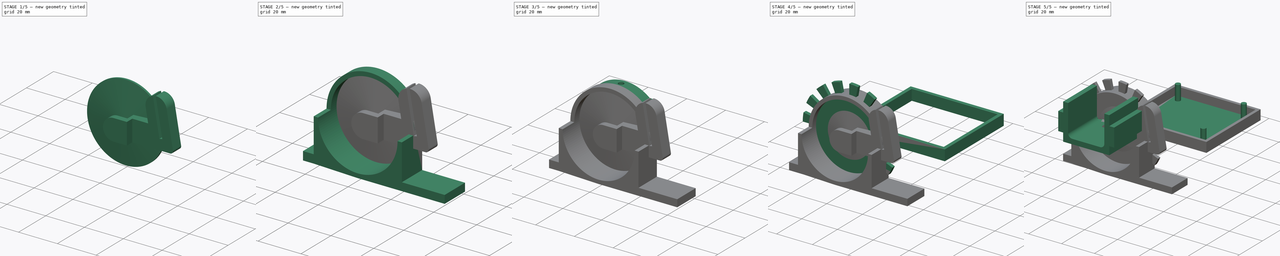
[diagram: build sequence overview — one tinted view per stage of 5, left to right]
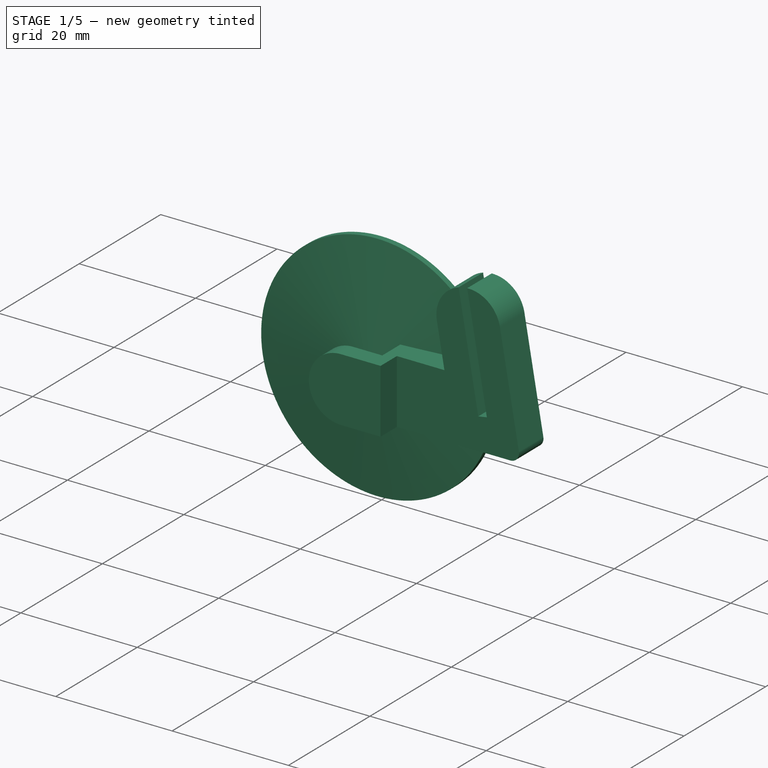
[diagram: stage 1 of 5 — iso view after this stage's code; geometry added in this stage tinted green]
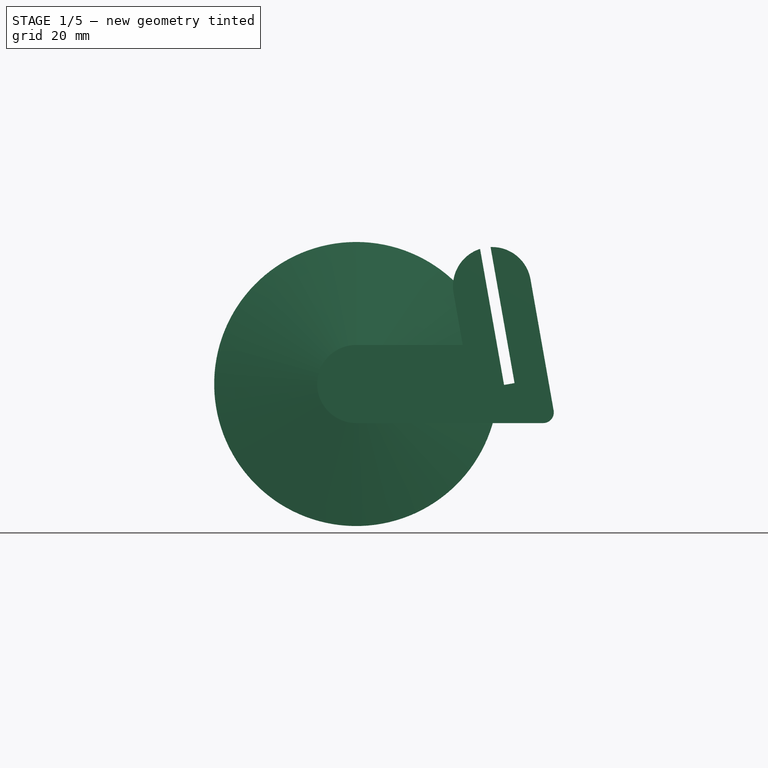
[diagram: stage 1 of 5 — front view after this stage's code; geometry added in this stage tinted green]
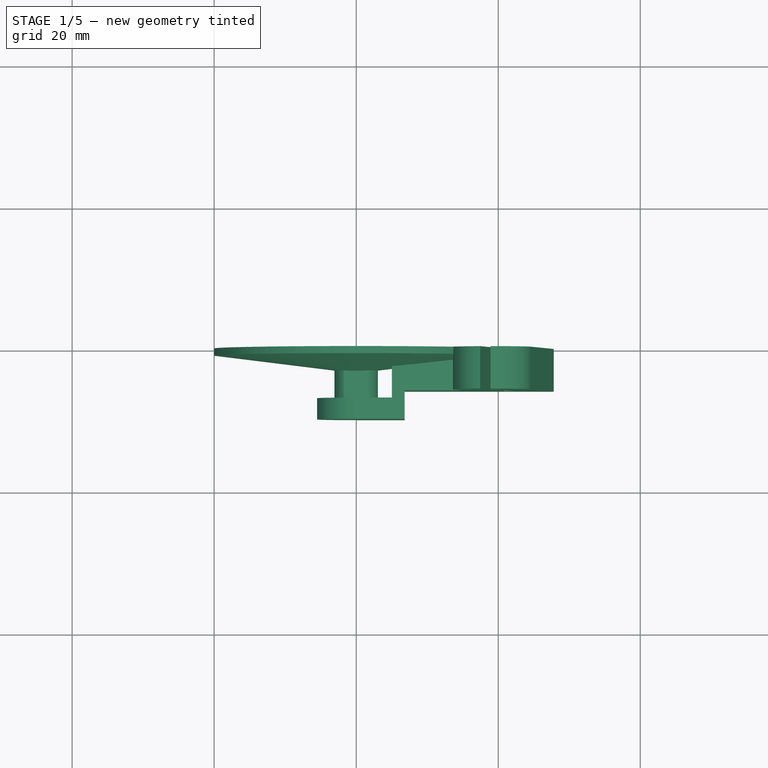
[diagram: stage 1 of 5 — top view after this stage's code; geometry added in this stage tinted green]
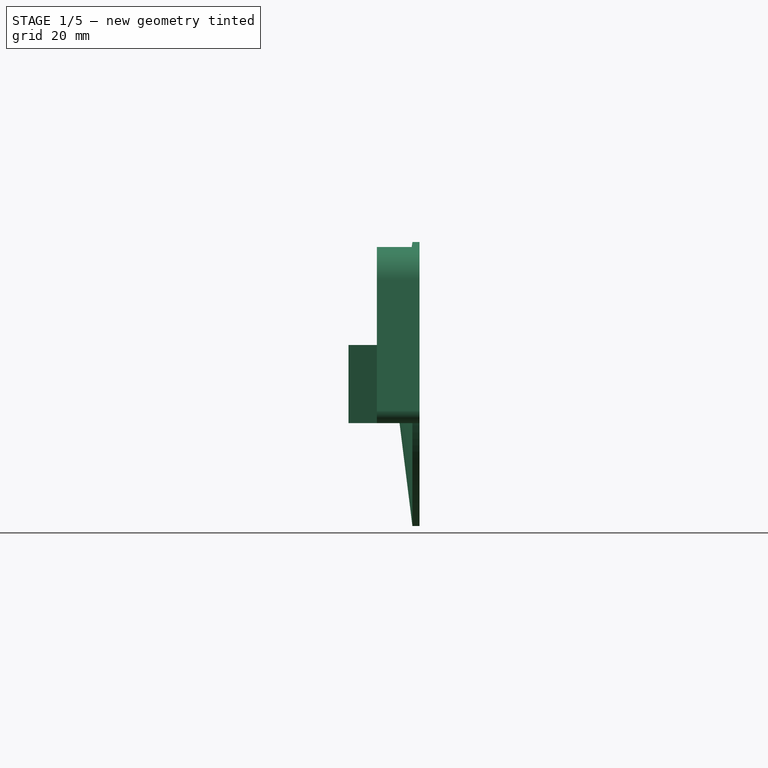
[diagram: stage 1 of 5 — right view after this stage's code; geometry added in this stage tinted green]
FCSTD DOCUMENT  (FreeCAD 1.0R39109 (Git))
Label: GreartisanGB37RGHolder
License: All rights reserved
LicenseURL: http://en.wikipedia.org/wiki/All_rights_reserved
objects: Sketcher::SketchObject×29, PartDesign::Pad×15, PartDesign::Pocket×11, PartDesign::Body×7, App::VarSet×1, PartDesign::Groove×1, PartDesign::PolarPattern×1, PartDesign::Revolution×1
note: 151 computed .brp shape members not serialized (recipe doc carries the construction recipe); baked Part::Feature solids carry a one-line shape summary decoded from their .brp

FEATURE [PartDesign::Body] Body001  label="Connector"
  AllowCompound = false
  Group = -> [Sketch002,Pad002,Sketch003,Groove,Sketch004,Pocket,Sketch006,Pocket001,Sketch007,Pocket002,Sketch015,Pad008,Sketch016,Pocket006,Sketch017,Pocket007,PolarPattern]
  Origin = -> Origin001
  Tip = -> PolarPattern
FEATURE [Sketcher::SketchObject] Sketch018
  ArcFitTolerance = 1e-06
  AttachmentSupport = -> [XZ_Plane001]
  FullyConstrained = false
  MakeInternals = false
  MapMode = 5
  Placement = pos=(0,0,0) rot=(1,0,0;1.5708rad)
  expr: Constraints[0] = VarSet.shaftHolderR
  sketch-geometry (1):
    g0: Circle CenterX=0 CenterY=0 CenterZ=0 NormalX=0 NormalY=0 NormalZ=1 AngleXU=0 Radius=20
  constraints (1):
    c: Radius(g0) = 20
FEATURE [PartDesign::Pad] Pad009
  Direction = (0,-1,2e-16)
  Length = 1
  Length2 = 10
  Placement = pos=(0,0,0) rot=(1,0,0;1.5708rad)
  Profile = -> Sketch018
  ReferenceAxis = -> Sketch018 [N_Axis]
  Refine = true
  Suppressed = false
  Type = 0
  expr: Length = VarSet.motorConnTopCoverThickness
FEATURE [PartDesign::Body] Body005  label="InsertTest"
  AllowCompound = false
  Group = -> [Sketch025,Pad011]
  Origin = -> Origin005
  Tip = -> Pad011
FEATURE [Sketcher::SketchObject] Sketch026  label="skirt"
  ArcFitTolerance = 1e-06
  AttachmentSupport = -> [YZ_Plane004]
  FullyConstrained = true
  MakeInternals = false
  MapMode = 5
  Placement = pos=(0,0,0) rot=(0.57735,0.57735,0.57735;2.0944rad)
  expr: Constraints[10] = VarSet.motorConnTopCoverThickness
  expr: Constraints[4] = VarSet.shaftHolderR
  sketch-geometry (4):
    g0: LineSegment StartX=0 StartY=0 StartZ=0 EndX=0 EndY=20 EndZ=0
    g1: LineSegment StartX=-3.5 StartY=0 StartZ=0 EndX=0 EndY=0 EndZ=0
    g2: LineSegment StartX=0 StartY=20 StartZ=0 EndX=-1 EndY=20 EndZ=0
    g3: LineSegment StartX=-1 StartY=20 StartZ=0 EndX=-3.5 EndY=0 EndZ=0
  constraints (11):
    c: Coincident(g0,g-1)
    c: PointOnObject(g0,g-2)
    c: PointOnObject(g1,g-1)
    c: Coincident(g1,g0)
    c: DistanceY(g0,g0) = 20
    c: Coincident(g2,g0)
    c: Horizontal(g2)
    c: Coincident(g3,g2)
    c: Coincident(g3,g1)
    c: DistanceX(g1,g1) = 3.5
    c: DistanceX(g2,g2) = 1
FEATURE [PartDesign::Revolution] Revolution
  Angle = 360
  Angle2 = 60
  Axis = (0,1,0)
  Base = (0,0,0)
  BaseFeature = -> Pad009
  Placement = pos=(0,0,0) rot=(1,0,0;1.5708rad)
  Profile = -> Sketch026
  ReferenceAxis = -> Sketch026 [H_Axis]
  Refine = true
  Suppressed = false
  Type = 0
FEATURE [PartDesign::Pad] Pad012
  BaseFeature = -> Revolution
  Direction = (0,-1,2e-16)
  Length = 10
  Length2 = 10
  Placement = pos=(0,0,0) rot=(1,0,0;1.5708rad)
  Profile = -> Sketch024
  ReferenceAxis = -> Sketch024 [N_Axis]
  Refine = true
  Suppressed = false
  Type = 0
FEATURE [PartDesign::Body] Body004  label="ConnectorTop"
  AllowCompound = false
  Group = -> [Sketch018,Pad009,Sketch024,Sketch026,Revolution,Pad012,Sketch029,Pocket008]
  Origin = -> Origin004
  Tip = -> Pocket008
FEATURE [Sketcher::SketchObject] Sketch030
  ArcFitTolerance = 1e-06
  AttachmentSupport = -> [XZ_Plane005]
  FullyConstrained = true
  MakeInternals = false
  MapMode = 5
  Placement = pos=(0,0,0) rot=(1,0,0;1.5708rad)
  expr: Constraints[3] = VarSet.encoderHolderR + 2 mm
  sketch-geometry (12):
    g0: ArcOfCircle CenterX=0 CenterY=0 CenterZ=0 NormalX=0 NormalY=0 NormalZ=1 AngleXU=0 Radius=5.5 StartAngle=1.5708 EndAngle=4.71239
    g1: LineSegment StartX=-9e-16 StartY=5.5 StartZ=0 EndX=15 EndY=5.5 EndZ=0
    g2: LineSegment StartX=-1e-15 StartY=-5.5 StartZ=0 EndX=26.3217 EndY=-5.5 EndZ=0
    g3: LineSegment StartX=15 StartY=5.5 StartZ=0 EndX=13.7071 EndY=12.8322 EndZ=0
    g4: LineSegment StartX=27.7989 StartY=-3.73953 StartZ=0 EndX=24.54 EndY=14.7424 EndZ=0
    g5: ArcOfCircle CenterX=19.1236 CenterY=13.7873 CenterZ=0 NormalX=0 NormalY=0 NormalZ=1 AngleXU=0 Radius=5.5 StartAngle=0.174533 EndAngle=1.60854
    g6: LineSegment [constr] StartX=19.1236 StartY=13.7873 StartZ=0 EndX=21.5546 EndY=0 EndZ=0
    g7: LineSegment StartX=20.816 StartY=-0.130236 StartZ=0 EndX=22.2933 EndY=0.130236 EndZ=0
    g8: LineSegment StartX=20.816 StartY=-0.130236 StartZ=0 EndX=17.4388 EndY=19.0229 EndZ=0
    g9: LineSegment StartX=22.2933 StartY=0.130236 StartZ=0 EndX=18.916 EndY=19.2834 EndZ=0
    g10: ArcOfCircle CenterX=19.1236 CenterY=13.7873 CenterZ=0 NormalX=0 NormalY=0 NormalZ=1 AngleXU=0 Radius=5.5 StartAngle=1.88212 EndAngle=3.31613
    g11: ArcOfCircle CenterX=26.3217 CenterY=-4 CenterZ=0 NormalX=0 NormalY=0 NormalZ=1 AngleXU=0 Radius=1.5 StartAngle=4.71239 EndAngle=6.45772
  constraints (32):
    c: Tangent(g0,g1) = 1.5708
    c: Tangent(g0,g2) = -1.5708
    c: Coincident(g0,g-1)
    c: Radius(g0) = 5.5
    c: Horizontal(g1)
    c: Horizontal(g2)
    c: Coincident(g3,g1)
    c: Parallel(g3,g4)
    c: Tangent(g5,g4) = -1.5708
    c: Equal(g5,g0)
    c: Coincident(g6,g5)
    c: PointOnObject(g6,g-1)
    c: Parallel(g6,g4)
    c: Distance(g6) = 14
    c: Coincident(g8,g7)
    c: PointOnObject(g8,g10)
    c: Parallel(g8,g3)
    c: Parallel(g9,g4)
    c: Symmetric(g7,g9,g6)
    c: PointOnObject(g6,g7)
    c: Distance(g7) = 1.5
    c: Equal(g5,g10)
    c: Coincident(g5,g9)
    c: PointOnObject(g10,g8)
    c: Coincident(g5,g10)
    c: Coincident(g9,g7)
    c: Angle(g6,g-1) = 1.39626
    c: Tangent(g10,g3) = 1.5708
    c: DistanceX(g1,g1) = 15
    c: Tangent(g4,g11) = -1.5708
    c: Tangent(g2,g11) = -1.5708
    c: Radius(g11) = 1.5
FEATURE [PartDesign::Pad] Pad015
  Direction = (0,-1,2e-16)
  Length = 10
  Length2 = 10
  Placement = pos=(0,0,0) rot=(1,0,0;1.5708rad)
  Profile = -> Sketch030
  ReferenceAxis = -> Sketch030 [N_Axis]
  Refine = true
  Suppressed = false
  Type = 0
FEATURE [Sketcher::SketchObject] Sketch031
  ArcFitTolerance = 1e-06
  AttachmentOffset = pos=(0,0,2) rot=(0,0,1;0rad)
  AttachmentSupport = -> [XZ_Plane005]
  FullyConstrained = false
  MakeInternals = false
  MapMode = 5
  Placement = pos=(0,-2,4e-16) rot=(1,0,0;1.5708rad)
  expr: Constraints[1] = VarSet.encoderHolderR + 2 mm
  sketch-geometry (4):
    g0: ArcOfCircle CenterX=0 CenterY=0 CenterZ=0 NormalX=0 NormalY=0 NormalZ=1 AngleXU=0 Radius=5.5 StartAngle=1.5708 EndAngle=4.71239
    g1: LineSegment StartX=-9.71576e-09 StartY=-5.5 StartZ=0 EndX=5.01577 EndY=-5.5 EndZ=0
    g2: LineSegment StartX=5.01577 StartY=-5.5 StartZ=0 EndX=5.01577 EndY=5.5 EndZ=0
    g3: LineSegment StartX=5.01577 StartY=5.5 StartZ=0 EndX=-9.71576e-09 EndY=5.5 EndZ=0
  constraints (8):
    c: Coincident(g0,g-1)
    c: Radius(g0) = 5.5
    c: Coincident(g1,g2)
    c: Coincident(g2,g3)
    c: Vertical(g2)
    c: Horizontal(g1)
    c: Horizontal(g3)
    c: Tangent(g1,g0)
FEATURE [PartDesign::Pocket] Pocket009
  BaseFeature = -> Pad015
  Direction = (0,1,-2e-16)
  Length = 5
  Length2 = 5
  Placement = pos=(0,0,0) rot=(1,0,0;1.5708rad)
  Profile = -> Sketch031
  ReferenceAxis = -> Sketch031 [N_Axis]
  Refine = true
  Reversed = true
  Suppressed = false
  Type = 0
  expr: Length = VarSet.motorHolderSidePad
FEATURE [Sketcher::SketchObject] Sketch032
  ArcFitTolerance = 1e-06
  AttachmentOffset = pos=(0,0,10) rot=(0,0,1;0rad)
  AttachmentSupport = -> [XZ_Plane005]
  FullyConstrained = false
  MakeInternals = false
  MapMode = 5
  Placement = pos=(0,-10,2.2e-15) rot=(1,0,0;1.5708rad)
  sketch-geometry (4):
    g0: LineSegment StartX=6.8221 StartY=20.9689 StartZ=0 EndX=6.8221 EndY=-8.21123 EndZ=0
    g1: LineSegment StartX=6.8221 StartY=-8.21123 StartZ=0 EndX=31.7596 EndY=-8.21123 EndZ=0
    g2: LineSegment StartX=31.7596 StartY=-8.21123 StartZ=0 EndX=31.7596 EndY=20.9689 EndZ=0
    g3: LineSegment StartX=31.7596 StartY=20.9689 StartZ=0 EndX=6.8221 EndY=20.9689 EndZ=0
  constraints (8):
    c: Coincident(g0,g1)
    c: Coincident(g1,g2)
    c: Coincident(g2,g3)
    c: Coincident(g3,g0)
    c: Vertical(g0)
    c: Vertical(g2)
    c: Horizontal(g1)
    c: Horizontal(g3)
FEATURE [PartDesign::Pocket] Pocket010
  BaseFeature = -> Pocket009
  Direction = (0,1,-2e-16)
  Length = 4
  Length2 = 5
  Placement = pos=(0,0,0) rot=(1,0,0;1.5708rad)
  Profile = -> Sketch032
  ReferenceAxis = -> Sketch032 [N_Axis]
  Refine = true
  Suppressed = false
  Type = 0
FEATURE [PartDesign::Body] Body006  label="encoderHolder"
  AllowCompound = false
  Group = -> [Sketch030,Pad015,Sketch031,Pocket009,Sketch032,Pocket010]
  Origin = -> Origin006
  Tip = -> Pocket010
FEATURE [Sketcher::SketchObject] Sketch033
  ArcFitTolerance = 1e-06
  AttachmentSupport = -> [XZ_Plane]
  FullyConstrained = false
  MakeInternals = false
  MapMode = 5
  Placement = pos=(0,0,0) rot=(1,0,0;1.5708rad)
  sketch-geometry (8):
    g0: LineSegment StartX=21.8999 StartY=-11.5394 StartZ=0 EndX=21.8999 EndY=-23.8285 EndZ=0
    g1: LineSegment StartX=21.8999 StartY=-23.8285 StartZ=0 EndX=45.6427 EndY=-23.8285 EndZ=0
    g2: LineSegment StartX=45.6427 StartY=-23.8285 StartZ=0 EndX=45.6427 EndY=-11.5394 EndZ=0
    g3: LineSegment StartX=45.6427 StartY=-11.5394 StartZ=0 EndX=21.8999 EndY=-11.5394 EndZ=0
    g4: LineSegment StartX=-33.5231 StartY=22.6731 StartZ=0 EndX=-33.5231 EndY=-31.5987 EndZ=0
    g5: LineSegment StartX=-33.5231 StartY=-31.5987 StartZ=0 EndX=51.9934 EndY=-31.5987 EndZ=0
    g6: LineSegment StartX=51.9934 StartY=-31.5987 StartZ=0 EndX=51.9934 EndY=22.6731 EndZ=0
    g7: LineSegment StartX=51.9934 StartY=22.6731 StartZ=0 EndX=-33.5231 EndY=22.6731 EndZ=0
  constraints (16):
    c: Coincident(g0,g1)
    c: Coincident(g1,g2)
    c: Coincident(g2,g3)
    c: Coincident(g3,g0)
    c: Vertical(g0)
    c: Vertical(g2)
    c: Horizontal(g1)
    c: Horizontal(g3)
    c: Coincident(g4,g5)
    c: Coincident(g5,g6)
    c: Coincident(g6,g7)
    c: Coincident(g7,g4)
    c: Vertical(g4)
    c: Vertical(g6)
    c: Horizontal(g5)
    c: Horizontal(g7)
FEATURE [PartDesign::Body] Body  label="Holder"
  AllowCompound = false
  Group = -> [Sketch,Pad,Sketch001,Pad001,Sketch009,Pad004,Sketch027,Pad013,Sketch028,Pad014,Sketch033]
  Origin = -> Origin
  Tip = -> Pad014
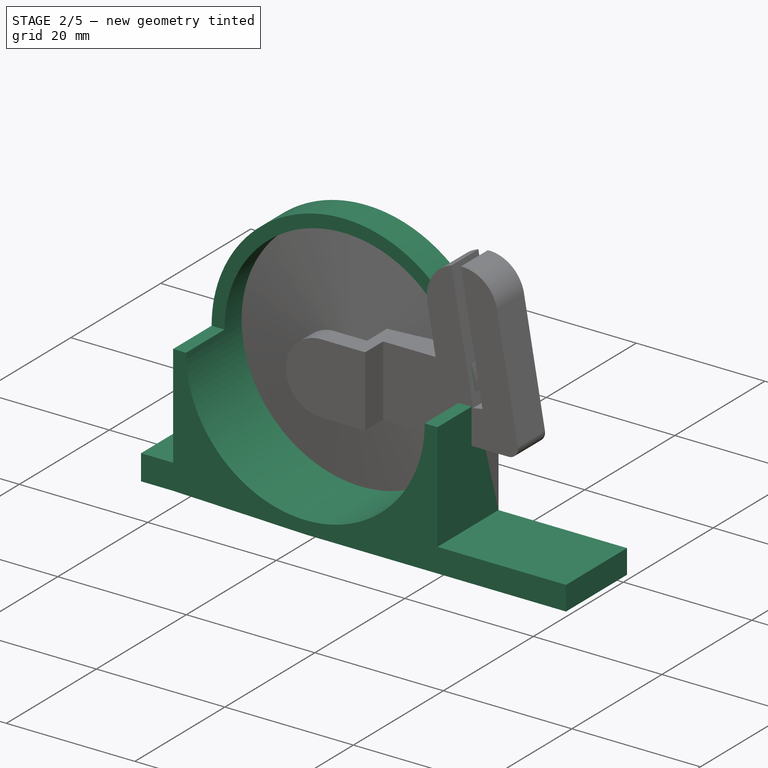
[diagram: stage 2 of 5 — iso view after this stage's code; geometry added in this stage tinted green]
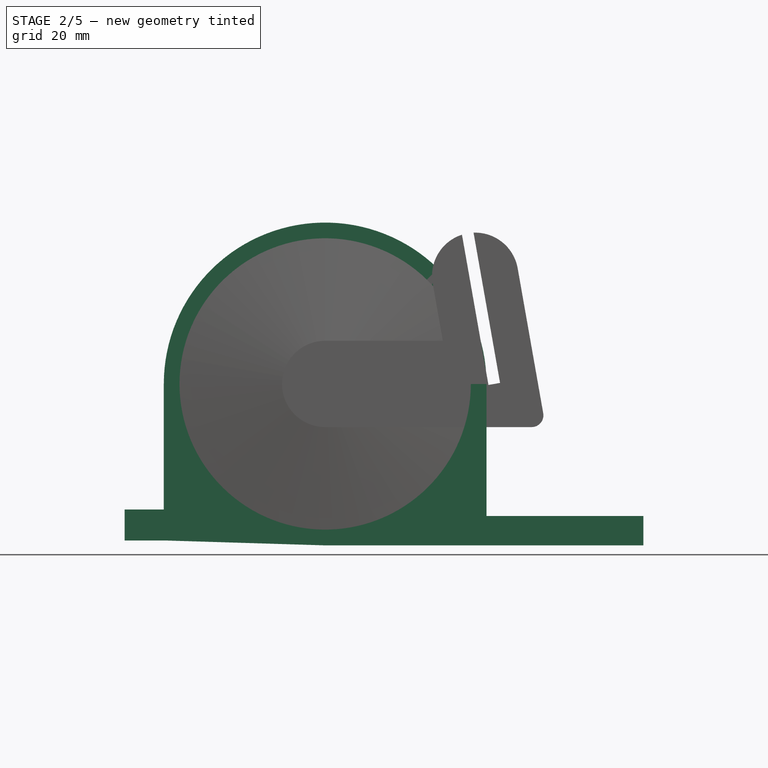
[diagram: stage 2 of 5 — front view after this stage's code; geometry added in this stage tinted green]
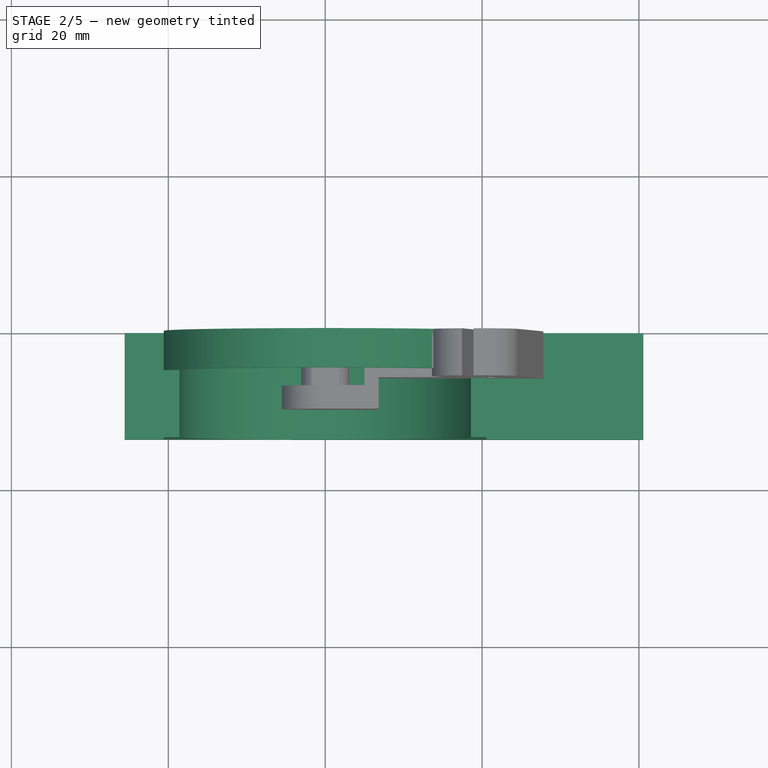
[diagram: stage 2 of 5 — top view after this stage's code; geometry added in this stage tinted green]
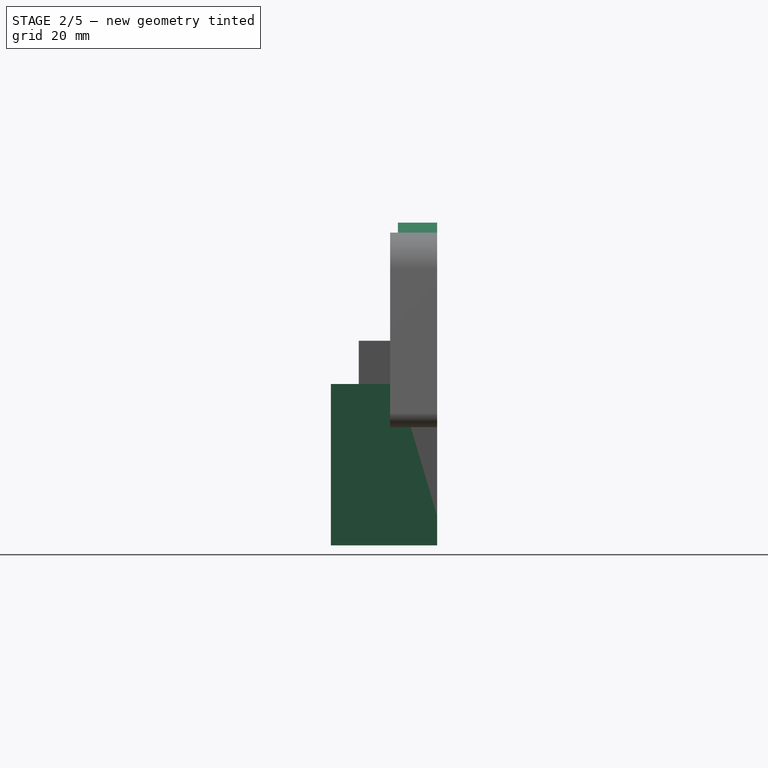
[diagram: stage 2 of 5 — right view after this stage's code; geometry added in this stage tinted green]
FEATURE [App::VarSet] VarSet
  MotorShaftHookLen = 26
  adj = 0.07
  connTopAdj = 0
  encoderHolderR = 3.5
  encoderLen = 6
  insertAdj = 0.05
  insertHeight = 4
  insertWidth = 14
  m3ScrewLight = 1.5
  m3ScrewTight = 1.4
  motorConnBaseHight = 6
  motorConnTopCoverThickness = 1
  motorConnWireRodLen = 12
  motorControllerAdj = 0.2
  motorControllerBottomCoverTemp = 9
  motorControllerBottomPad = 1
  motorControllerBottomThickness = 6
  motorControllerHeight = 48
  motorControllerHoleR = 1.5
  motorControllerHoleToSide = 4
  motorControllerSide = 2
  motorControllerWidth = 43
  motorHolderScrewR = 15.5
  motorHolderSidePad = 5
  motorHolderThickness = 2
  motorR = 18.5
  motorRAfterAdj = 18.57
  motorShaftHolderR = 10
  motorShaftLimitHight = 2.5
  motorShaftR = 3
  motorShaftSurrandR = 6
  motorShaftToCenter = 7
  shaftHolderR = 20
  topInsertBottomHeight = 5
  topInsertBottomWith = 28
  topInsertMidHeight = 11
  topInsertMidWidth = 34
  topInsertThickness = 3
  topInsertTopHeight = 6
  topInsertTopWidth = 28
  expr: motorRAfterAdj = motorR + adj
  expr: motorShaftSurrandR = 6
FEATURE [Sketcher::SketchObject] Sketch  label="base"
  ArcFitTolerance = 1e-06
  AttachmentSupport = -> [XZ_Plane]
  FullyConstrained = true
  MakeInternals = false
  MapMode = 5
  Placement = pos=(0,0,0) rot=(1,0,0;1.5708rad)
  expr: Constraints[1] = VarSet.motorRAfterAdj
  expr: Constraints[24] = VarSet.m3ScrewLight
  expr: Constraints[25] = VarSet.motorHolderScrewR
  expr: Constraints[26] = VarSet.motorHolderScrewR
  expr: Constraints[27] = VarSet.motorHolderScrewR
  expr: Constraints[28] = VarSet.motorHolderScrewR
  expr: Constraints[29] = VarSet.motorHolderScrewR
  expr: Constraints[31] = VarSet.motorHolderScrewR
  expr: Constraints[33] = VarSet.motorShaftToCenter
  expr: Constraints[34] = VarSet.motorShaftSurrandR + VarSet.adj
  sketch-geometry (11):
    g0: Circle CenterX=0 CenterY=0 CenterZ=0 NormalX=0 NormalY=0 NormalZ=1 AngleXU=0 Radius=18.57
    g1: Circle CenterX=-7.75 CenterY=13.4234 CenterZ=0 NormalX=0 NormalY=0 NormalZ=1 AngleXU=0 Radius=1.5
    g2: LineSegment [constr] StartX=9.285 StartY=16.0821 StartZ=0 EndX=-9.285 EndY=-16.0821 EndZ=0
    g3: LineSegment [constr] StartX=-18.57 StartY=0 StartZ=0 EndX=18.57 EndY=0 EndZ=0
    g4: LineSegment [constr] StartX=9.285 StartY=-16.0821 StartZ=0 EndX=-9.285 EndY=16.0821 EndZ=0
    g5: Circle CenterX=7.75 CenterY=13.4234 CenterZ=0 NormalX=0 NormalY=0 NormalZ=1 AngleXU=0 Radius=1.5
    g6: Circle CenterX=15.5 CenterY=0 CenterZ=0 NormalX=0 NormalY=0 NormalZ=1 AngleXU=0 Radius=1.5
    g7: Circle CenterX=7.75 CenterY=-13.4234 CenterZ=0 NormalX=0 NormalY=0 NormalZ=1 AngleXU=0 Radius=1.5
    g8: Circle CenterX=-7.75 CenterY=-13.4234 CenterZ=0 NormalX=0 NormalY=0 NormalZ=1 AngleXU=0 Radius=1.5
    g9: Circle CenterX=-15.5 CenterY=0 CenterZ=0 NormalX=0 NormalY=0 NormalZ=1 AngleXU=0 Radius=1.5
    g10: Circle CenterX=0 CenterY=7 CenterZ=0 NormalX=0 NormalY=0 NormalZ=1 AngleXU=0 Radius=6.07
  constraints (35):
    c: Coincident(g0,g-1)
    c: Radius(g0) = 18.57
    c: PointOnObject(g2,g0)
    c: PointOnObject(g2,g0)
    c: PointOnObject(g3,g0)
    c: PointOnObject(g3,g0)
    c: PointOnObject(g4,g0)
    c: PointOnObject(g4,g0)
    c: PointOnObject(g0,g3)
    c: PointOnObject(g0,g2)
    c: PointOnObject(g0,g4)
    c: PointOnObject(g3,g-1)
    c: Angle(g3,g2) = 1.0472
    c: Angle(g4,g3) = 1.0472
    c: PointOnObject(g5,g2)
    c: PointOnObject(g6,g3)
    c: PointOnObject(g7,g4)
    c: PointOnObject(g8,g2)
    c: PointOnObject(g9,g3)
    c: Equal(g1,g5)
    c: Equal(g5,g6)
    c: Equal(g6,g7)
    c: Equal(g7,g8)
    c: Equal(g8,g9)
    c: Radius(g1) = 1.5
    c: Distance(g5,g0) = 15.5
    c: Distance(g0,g6) = 15.5
    c: Distance(g0,g7) = 15.5
    c: Distance(g0,g8) = 15.5
    c: Distance(g0,g9) = 15.5
    c: PointOnObject(g1,g4)
    c: Distance(g1,g0) = 15.5
    c: PointOnObject(g10,g-2)
    c: DistanceY(g0,g10) = 7
    c: Radius(g10) = 6.07
FEATURE [PartDesign::Pad] Pad  label="base001"
  Direction = (0,-1,2e-16)
  Length = 1
  Length2 = 10
  Placement = pos=(0,0,0) rot=(1,0,0;1.5708rad)
  Profile = -> Sketch
  ReferenceAxis = -> Sketch [N_Axis]
  Refine = true
  Suppressed = false
  Type = 0
FEATURE [Sketcher::SketchObject] Sketch001  label="Sides"
  ArcFitTolerance = 1e-06
  AttachmentSupport = -> [XZ_Plane]
  FullyConstrained = true
  MakeInternals = false
  MapMode = 5
  Placement = pos=(0,0,0) rot=(1,0,0;1.5708rad)
  expr: Constraints[2] = VarSet.motorRAfterAdj
  expr: Constraints[3] = VarSet.motorRAfterAdj + VarSet.motorHolderThickness
  sketch-geometry (2):
    g0: Circle CenterX=0 CenterY=0 CenterZ=0 NormalX=0 NormalY=0 NormalZ=1 AngleXU=0 Radius=20.57
    g1: Circle CenterX=0 CenterY=0 CenterZ=0 NormalX=0 NormalY=0 NormalZ=1 AngleXU=0 Radius=18.57
  constraints (4):
    c: Coincident(g0,g-1)
    c: Coincident(g1,g0)
    c: Radius(g1) = 18.57
    c: Radius(g0) = 20.57
FEATURE [PartDesign::Pad] Pad001  label="sides002"
  BaseFeature = -> Pad
  Direction = (0,-1,2e-16)
  Length = 5
  Length2 = 10
  Placement = pos=(0,0,0) rot=(1,0,0;1.5708rad)
  Profile = -> Sketch001
  ReferenceAxis = -> Sketch001 [N_Axis]
  Refine = true
  Suppressed = false
  Type = 0
  expr: Length = VarSet.motorHolderSidePad
FEATURE [Sketcher::SketchObject] Sketch009
  ArcFitTolerance = 1e-06
  AttachmentSupport = -> [XZ_Plane]
  FullyConstrained = false
  MakeInternals = false
  MapMode = 5
  Placement = pos=(0,0,0) rot=(1,0,0;1.5708rad)
  expr: Constraints[10] = VarSet.motorRAfterAdj + VarSet.motorHolderThickness + 5 mm
  expr: Constraints[12] = 3
  expr: Constraints[18] = VarSet.m3ScrewTight
  expr: Constraints[4] = VarSet.topInsertBottomWith
  expr: Constraints[7] = VarSet.motorRAfterAdj + VarSet.motorHolderThickness
  sketch-geometry (7):
    g0: LineSegment StartX=-20.57 StartY=2.5e-15 StartZ=0 EndX=-20.57 EndY=-25.57 EndZ=0
    g1: LineSegment StartX=-20.57 StartY=-25.57 StartZ=0 EndX=7.43 EndY=-25.57 EndZ=0
    g2: LineSegment StartX=7.43 StartY=-25.57 StartZ=0 EndX=7.43 EndY=-19.1812 EndZ=0
    g3: ArcOfCircle CenterX=0 CenterY=0 CenterZ=0 NormalX=0 NormalY=0 NormalZ=1 AngleXU=0 Radius=20.57 StartAngle=3.14159 EndAngle=5.08195
    g4: LineSegment [constr] StartX=-17.57 StartY=-22.57 StartZ=0 EndX=4.43 EndY=-22.57 EndZ=0
    g5: Circle CenterX=-17.57 CenterY=-22.57 CenterZ=0 NormalX=0 NormalY=0 NormalZ=1 AngleXU=0 Radius=1.4
    g6: Circle CenterX=4.43 CenterY=-22.57 CenterZ=0 NormalX=0 NormalY=0 NormalZ=1 AngleXU=0 Radius=1.4
  constraints (20):
    c: Coincident(g0,g1)
    c: Coincident(g1,g2)
    c: Vertical(g0)
    c: Vertical(g2)
    c: DistanceX(g1,g1) = 28
    c: PointOnObject(g3,g-2)
    c: PointOnObject(g3,g-1)
    c: Radius(g3) = 20.57
    c: Coincident(g3,g2)
    c: Coincident(g3,g0)
    c: DistanceY(g1,g3) = 25.57
    c: Horizontal(g4)
    c: DistanceY(g0,g4) = 3
    c: DistanceX(g0,g4) = 3
    c: DistanceX(g4,g1) = 3
    c: Coincident(g5,g4)
    c: Coincident(g6,g4)
    c: Equal(g6,g5)
    c: Radius(g5) = 1.4
    c: Horizontal(g1)
FEATURE [PartDesign::Pad] Pad004
  BaseFeature = -> Pad001
  Direction = (0,-1,2e-16)
  Length = 3
  Length2 = 10
  Placement = pos=(0,0,0) rot=(1,0,0;1.5708rad)
  Profile = -> Sketch009
  ReferenceAxis = -> Sketch009 [N_Axis]
  Refine = true
  Suppressed = true
  Type = 0
FEATURE [Sketcher::SketchObject] Sketch027  label="sideConnBase"
  ArcFitTolerance = 1e-06
  AttachmentSupport = -> [XZ_Plane]
  FullyConstrained = true
  MakeInternals = false
  MapMode = 5
  Placement = pos=(0,0,0) rot=(1,0,0;1.5708rad)
  expr: Constraints[11] = VarSet.motorRAfterAdj + VarSet.motorHolderThickness
  expr: Constraints[1] = VarSet.motorRAfterAdj
  expr: Constraints[37] = VarSet.insertHeight - VarSet.insertAdj - 0.2 mm
  expr: Constraints[5] = VarSet.insertHeight - VarSet.insertAdj
  sketch-geometry (15):
    g0: ArcOfCircle CenterX=0 CenterY=0 CenterZ=0 NormalX=0 NormalY=0 NormalZ=1 AngleXU=0 Radius=18.57 StartAngle=3.14159 EndAngle=6.28319
    g1: LineSegment StartX=-20.57 StartY=-16 StartZ=0 EndX=-25.57 EndY=-16 EndZ=0
    g2: LineSegment StartX=-25.57 StartY=-16 StartZ=0 EndX=-25.57 EndY=-19.95 EndZ=0
    g3: LineSegment StartX=-25.57 StartY=-19.95 StartZ=0 EndX=-20.57 EndY=-19.95 EndZ=0
    g4: Circle [constr] CenterX=0 CenterY=0 CenterZ=0 NormalX=0 NormalY=0 NormalZ=1 AngleXU=0 Radius=18.57
    g5: Circle [constr] CenterX=0 CenterY=0 CenterZ=0 NormalX=0 NormalY=0 NormalZ=1 AngleXU=0 Radius=20.57
    g6: LineSegment StartX=-20.57 StartY=-16 StartZ=0 EndX=-20.57 EndY=3.6e-15 EndZ=0
    g7: LineSegment StartX=-20.57 StartY=2.3e-15 StartZ=0 EndX=-18.57 EndY=2.3e-15 EndZ=0
    g8: LineSegment StartX=-20.57 StartY=-19.95 StartZ=0 EndX=0 EndY=-20.5796 EndZ=0
    g9: LineSegment [constr] StartX=-20.57 StartY=-16 StartZ=0 EndX=-20.57 EndY=-19.95 EndZ=0
    g10: LineSegment StartX=18.57 StartY=-4.5e-15 StartZ=0 EndX=20.57 EndY=-4.5e-15 EndZ=0
    g11: LineSegment StartX=20.57 StartY=-4.5e-15 StartZ=0 EndX=20.57 EndY=-16.8296 EndZ=0
    g12: LineSegment StartX=20.57 StartY=-16.8296 StartZ=0 EndX=40.57 EndY=-16.8296 EndZ=0
    g13: LineSegment StartX=40.57 StartY=-16.8296 StartZ=0 EndX=40.57 EndY=-20.5796 EndZ=0
    g14: LineSegment StartX=40.57 StartY=-20.5796 StartZ=0 EndX=0 EndY=-20.5796 EndZ=0
  constraints (41):
    c: Coincident(g0,g-1)
    c: Radius(g0) = 18.57
    c: Coincident(g1,g2)
    c: Horizontal(g1)
    c: Vertical(g2)
    c: DistanceY(g2,g2) = 3.95
    c: Coincident(g3,g2)
    c: Horizontal(g3)
    c: Coincident(g4,g0)
    c: PointOnObject(g0,g4)
    c: Coincident(g5,g0)
    c: Radius(g5) = 20.57
    c: Coincident(g6,g1)
    c: Coincident(g7,g6)
    c: Coincident(g7,g0)
    c: Tangent(g6,g5) = 1.5708
    c: Vertical(g6)
    c: Horizontal(g7)
    c: Coincident(g8,g3)
    c: Coincident(g9,g1)
    c: Coincident(g9,g3)
    c: Vertical(g9)
    c: DistanceX(g1,g1) = 5
    c: DistanceY(g1,g0) = 16
    c: PointOnObject(g0,g-1)
    c: Coincident(g10,g0)
    c: PointOnObject(g10,g5)
    c: Horizontal(g10)
    c: Vertical(g11)
    c: Coincident(g11,g10)
    c: Coincident(g12,g11)
    c: Horizontal(g12)
    c: Coincident(g13,g12)
    c: Vertical(g13)
    c: Coincident(g14,g13)
    c: Coincident(g14,g8)
    c: DistanceX(g12,g12) = 20
    c: DistanceY(g13,g13) = 3.75
    c: Tangent(g8,g5)
    c: PointOnObject(g8,g-2)
    c: Horizontal(g14)
FEATURE [PartDesign::Pad] Pad013
  BaseFeature = -> Pad004
  Direction = (0,-1,2e-16)
  Length = 13.55
  Length2 = 10
  Placement = pos=(0,0,0) rot=(1,0,0;1.5708rad)
  Profile = -> Sketch027
  ReferenceAxis = -> Sketch027 [N_Axis]
  Refine = true
  Suppressed = false
  Type = 0
  expr: Length = VarSet.insertWidth - VarSet.insertAdj - 0.4 mm
FEATURE [Sketcher::SketchObject] Sketch028
  ArcFitTolerance = 1e-06
  AttachmentSupport = -> [XZ_Plane]
  FullyConstrained = true
  MakeInternals = false
  MapMode = 5
  Placement = pos=(0,0,0) rot=(1,0,0;1.5708rad)
  expr: Constraints[1] = VarSet.motorRAfterAdj + VarSet.motorHolderThickness
  expr: Constraints[7] = VarSet.m3ScrewTight
  expr: Constraints[8] = VarSet.encoderHolderR
  sketch-geometry (7):
    g0: ArcOfCircle CenterX=0 CenterY=0 CenterZ=0 NormalX=0 NormalY=0 NormalZ=1 AngleXU=0 Radius=20.57 StartAngle=2.09857 EndAngle=2.43928
    g1: ArcOfCircle CenterX=-22.4976 CenterY=26.8116 CenterZ=0 NormalX=0 NormalY=0 NormalZ=1 AngleXU=0 Radius=3.5 StartAngle=0.69727 EndAngle=3.84059
    g2: LineSegment StartX=-19.8145 StartY=29.059 StartZ=0 EndX=-10.3593 EndY=17.771 EndZ=0
    g3: LineSegment StartX=-25.1768 StartY=24.5595 StartZ=0 EndX=-15.7022 EndY=13.2878 EndZ=0
    g4: LineSegment [constr] StartX=0 StartY=0 StartZ=0 EndX=-26.4443 EndY=31.5151 EndZ=0
    g5: Circle CenterX=-22.4976 CenterY=26.8116 CenterZ=0 NormalX=0 NormalY=0 NormalZ=1 AngleXU=0 Radius=1.4
    g6: Circle [constr] CenterX=-13.2221 CenterY=15.7575 CenterZ=0 NormalX=0 NormalY=0 NormalZ=1 AngleXU=0 Radius=3.5
  constraints (18):
    c: Coincident(g0,g-1)
    c: Radius(g0) = 20.57
    c: Tangent(g1,g2) = 1.5708
    c: Tangent(g1,g3) = -1.5708
    c: Coincident(g4,g0)
    c: PointOnObject(g1,g4)
    c: Coincident(g5,g1)
    c: Radius(g5) = 1.4
    c: Radius(g1) = 3.5
    c: Distance(g1,g0) = 35
    c: Coincident(g2,g0)
    c: Symmetric(g4,g4,g6)
    c: PointOnObject(g6,g0)
    c: PointOnObject(g0,g6)
    c: Coincident(g0,g3)
    c: PointOnObject(g0,g6)
    c: Equal(g1,g6)
    c: Angle(g-1,g4) = 2.26893
FEATURE [PartDesign::Pad] Pad014
  BaseFeature = -> Pad013
  Direction = (0,-1,2e-16)
  Length = 5
  Length2 = 10
  Placement = pos=(0,0,0) rot=(1,0,0;1.5708rad)
  Profile = -> Sketch028
  ReferenceAxis = -> Sketch028 [N_Axis]
  Refine = true
  Suppressed = true
  Type = 0
  expr: Length = VarSet.motorHolderSidePad
FEATURE [Sketcher::SketchObject] Sketch029
  ArcFitTolerance = 1e-06
  AttachmentSupport = -> [XZ_Plane001]
  FullyConstrained = false
  MakeInternals = false
  MapMode = 5
  Placement = pos=(0,0,0) rot=(1,0,0;1.5708rad)
  sketch-geometry (8):
    g0: LineSegment StartX=-4.52189 StartY=4.3987 StartZ=0 EndX=-4.52189 EndY=-5.28437 EndZ=0
    g1: LineSegment StartX=-4.52189 StartY=-5.28437 StartZ=0 EndX=4.91011 EndY=-5.28437 EndZ=0
    g2: LineSegment StartX=4.91011 StartY=-5.28437 StartZ=0 EndX=4.91011 EndY=4.3987 EndZ=0
    g3: LineSegment StartX=4.91011 StartY=4.3987 StartZ=0 EndX=-4.52189 EndY=4.3987 EndZ=0
    g4: LineSegment StartX=-23.8022 StartY=23.22 StartZ=0 EndX=-23.8022 EndY=-24.5297 EndZ=0
    g5: LineSegment StartX=-23.8022 StartY=-24.5297 StartZ=0 EndX=25.1304 EndY=-24.5297 EndZ=0
    g6: LineSegment StartX=25.1304 StartY=-24.5297 StartZ=0 EndX=25.1304 EndY=23.22 EndZ=0
    g7: LineSegment StartX=25.1304 StartY=23.22 StartZ=0 EndX=-23.8022 EndY=23.22 EndZ=0
  constraints (16):
    c: Coincident(g0,g1)
    c: Coincident(g1,g2)
    c: Coincident(g2,g3)
    c: Coincident(g3,g0)
    c: Vertical(g0)
    c: Vertical(g2)
    c: Horizontal(g1)
    c: Horizontal(g3)
    c: Coincident(g4,g5)
    c: Coincident(g5,g6)
    c: Coincident(g6,g7)
    c: Coincident(g7,g4)
    c: Vertical(g4)
    c: Vertical(g6)
    c: Horizontal(g5)
    c: Horizontal(g7)
FEATURE [PartDesign::Pocket] Pocket008
  BaseFeature = -> Pad012
  Direction = (0,1,-2e-16)
  Length = 5
  Length2 = 5
  Midplane = true
  Placement = pos=(0,0,0) rot=(1,0,0;1.5708rad)
  Profile = -> Sketch029
  ReferenceAxis = -> Sketch029 [N_Axis]
  Refine = true
  Suppressed = true
  Type = 1
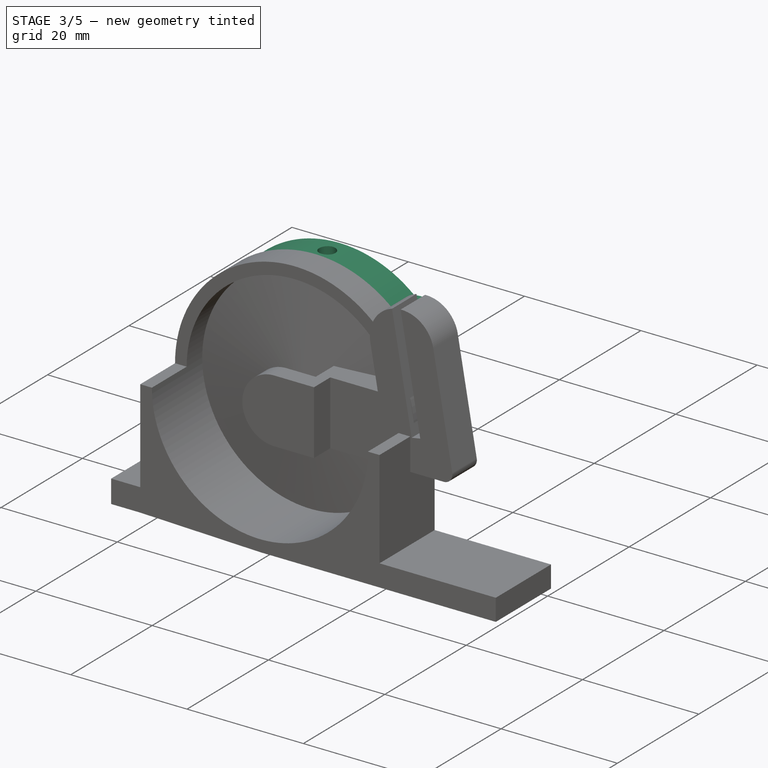
[diagram: stage 3 of 5 — iso view after this stage's code; geometry added in this stage tinted green]
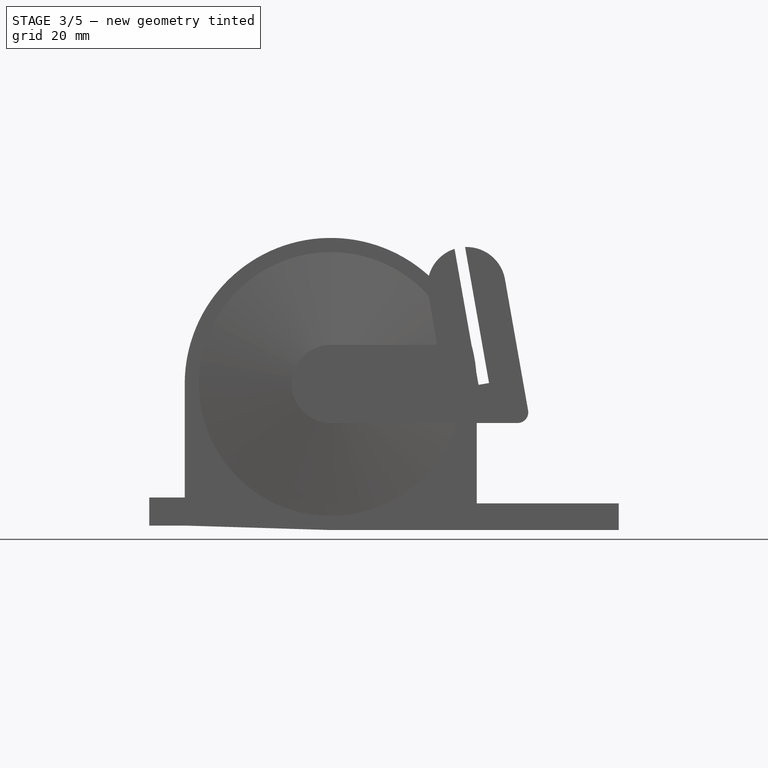
[diagram: stage 3 of 5 — front view after this stage's code; geometry added in this stage tinted green]
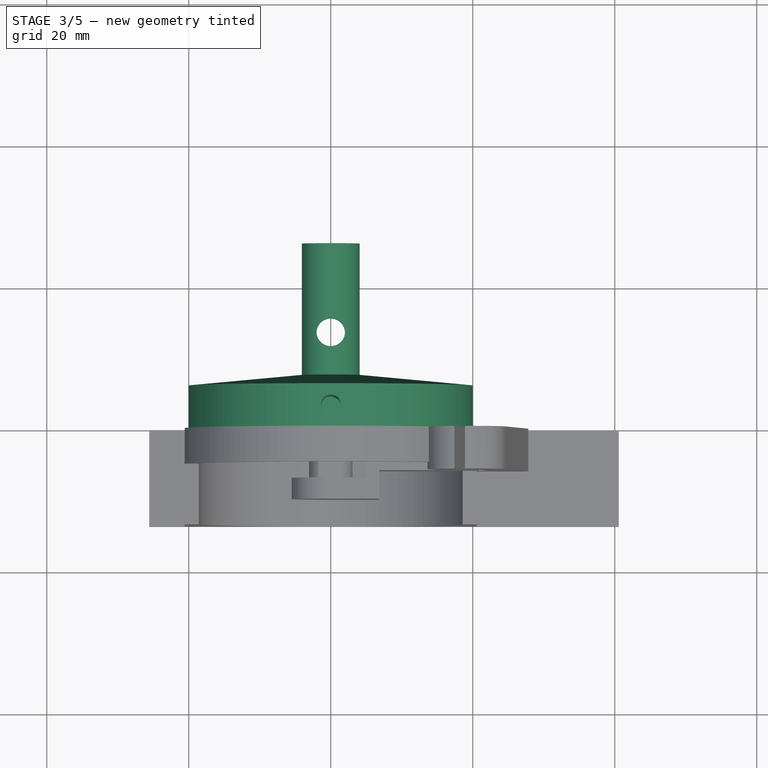
[diagram: stage 3 of 5 — top view after this stage's code; geometry added in this stage tinted green]
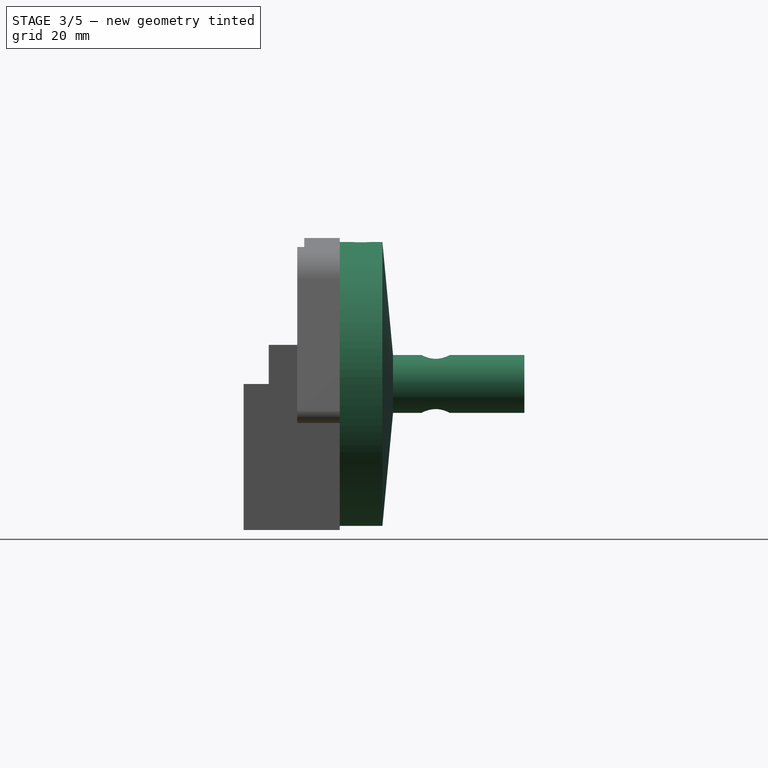
[diagram: stage 3 of 5 — right view after this stage's code; geometry added in this stage tinted green]
FEATURE [Sketcher::SketchObject] Sketch002
  ArcFitTolerance = 1e-06
  AttachmentSupport = -> [XZ_Plane001]
  FullyConstrained = true
  MakeInternals = false
  MapMode = 5
  Placement = pos=(0,0,0) rot=(1,0,0;1.5708rad)
  expr: Constraints[2] = VarSet.motorShaftR + VarSet.adj
  expr: Constraints[3] = VarSet.shaftHolderR
  expr: Constraints[5] = VarSet.motorShaftLimitHight
  sketch-geometry (3):
    g0: ArcOfCircle CenterX=0 CenterY=0 CenterZ=0 NormalX=0 NormalY=0 NormalZ=1 AngleXU=0 Radius=3.07 StartAngle=2.19001 EndAngle=7.23476
    g1: Circle CenterX=0 CenterY=0 CenterZ=0 NormalX=0 NormalY=0 NormalZ=1 AngleXU=0 Radius=20
    g2: LineSegment StartX=-1.78182 StartY=2.5 StartZ=0 EndX=1.78182 EndY=2.5 EndZ=0
  constraints (8):
    c: Coincident(g0,g-1)
    c: Coincident(g1,g0)
    c: Radius(g0) = 3.07
    c: Radius(g1) = 20
    c: Horizontal(g2)
    c: DistanceY(g0,g2) = 2.5
    c: Coincident(g0,g2)
    c: Coincident(g0,g2)
FEATURE [PartDesign::Pad] Pad002
  Direction = (0,-1,2e-16)
  Length = 26
  Length2 = 10
  Placement = pos=(0,0,0) rot=(1,0,0;1.5708rad)
  Profile = -> Sketch002
  ReferenceAxis = -> Sketch002 [N_Axis]
  Refine = true
  Reversed = true
  Suppressed = false
  Type = 0
  expr: Length = VarSet.MotorShaftHookLen
FEATURE [Sketcher::SketchObject] Sketch003
  ArcFitTolerance = 1e-06
  AttachmentSupport = -> [XY_Plane001]
  FullyConstrained = true
  MakeInternals = false
  MapMode = 5
  expr: Constraints[11] = VarSet.motorConnBaseHight
  expr: Constraints[13] = VarSet.motorShaftR + VarSet.adj + 1 mm
  expr: Constraints[15] = VarSet.MotorShaftHookLen
  expr: Constraints[2] = VarSet.MotorShaftHookLen
  expr: Constraints[3] = VarSet.shaftHolderR
  sketch-geometry (6):
    g0: LineSegment [constr] StartX=0 StartY=0 StartZ=0 EndX=0 EndY=26 EndZ=0
    g1: LineSegment [constr] StartX=20 StartY=26 StartZ=0 EndX=20 EndY=6 EndZ=0
    g2: LineSegment StartX=20 StartY=26 StartZ=0 EndX=4.07 EndY=26 EndZ=0
    g3: LineSegment StartX=4.07 StartY=26 StartZ=0 EndX=4.07 EndY=7.5 EndZ=0
    g4: LineSegment StartX=4.07 StartY=7.5 StartZ=0 EndX=20 EndY=6 EndZ=0
    g5: LineSegment StartX=20 StartY=6 StartZ=0 EndX=20 EndY=26 EndZ=0
  constraints (17):
    c: Coincident(g0,g-1)
    c: PointOnObject(g0,g-2)
    c: DistanceY(g0,g0) = 26
    c: DistanceX(g0,g1) = 20
    c: Coincident(g2,g1)
    c: Coincident(g3,g2)
    c: Coincident(g4,g1)
    c: Coincident(g5,g1)
    c: Coincident(g5,g2)
    c: DistanceY(g1,g3) = 1.5
    c: Vertical(g5)
    c: DistanceY(g0,g1) = 6
    c: Vertical(g3)
    c: DistanceX(g0,g3) = 4.07
    c: Coincident(g4,g3)
    c: DistanceY(g0,g1) = 26
    c: Horizontal(g2)
FEATURE [PartDesign::Groove] Groove
  Angle = 360
  Angle2 = 60
  Axis = (0,1,0)
  Base = (0,0,0)
  BaseFeature = -> Pad002
  Placement = pos=(0,0,0) rot=(1,0,0;1.5708rad)
  Profile = -> Sketch003
  ReferenceAxis = -> Sketch003 [V_Axis]
  Refine = true
  Suppressed = false
  Type = 0
FEATURE [Sketcher::SketchObject] Sketch004
  ArcFitTolerance = 1e-06
  AttachmentSupport = -> [XY_Plane001]
  FullyConstrained = true
  MakeInternals = false
  MapMode = 5
  expr: Constraints[2] = VarSet.motorConnBaseHight + 1.5 mm + VarSet.motorConnWireRodLen / 2
  sketch-geometry (1):
    g0: Circle CenterX=0 CenterY=13.5 CenterZ=0 NormalX=0 NormalY=0 NormalZ=1 AngleXU=0 Radius=2
  constraints (3):
    c: PointOnObject(g0,g-2)
    c: Radius(g0) = 2
    c: DistanceY(g-1,g0) = 13.5
FEATURE [PartDesign::Pocket] Pocket
  BaseFeature = -> Groove
  Direction = (0,0,-1)
  Length = 5
  Length2 = 5
  Midplane = true
  Placement = pos=(0,0,0) rot=(1,0,0;1.5708rad)
  Profile = -> Sketch004
  ReferenceAxis = -> Sketch004 [N_Axis]
  Refine = true
  Suppressed = false
  Type = 1
FEATURE [Sketcher::SketchObject] Sketch006
  ArcFitTolerance = 1e-06
  AttachmentSupport = -> [XY_Plane001]
  FullyConstrained = true
  MakeInternals = false
  MapMode = 5
  expr: Constraints[1] = VarSet.m3ScrewTight
  expr: Constraints[2] = VarSet.motorConnBaseHight / 2
  sketch-geometry (1):
    g0: Circle CenterX=0 CenterY=3 CenterZ=0 NormalX=0 NormalY=0 NormalZ=1 AngleXU=0 Radius=1.4
  constraints (3):
    c: PointOnObject(g0,g-2)
    c: Radius(g0) = 1.4
    c: DistanceY(g-1,g0) = 3
FEATURE [PartDesign::Pocket] Pocket001
  BaseFeature = -> Pocket
  Direction = (0,0,-1)
  Length = 5
  Length2 = 5
  Placement = pos=(0,0,0) rot=(1,0,0;1.5708rad)
  Profile = -> Sketch006
  ReferenceAxis = -> Sketch006 [N_Axis]
  Refine = true
  Reversed = true
  Suppressed = false
  Type = 1
FEATURE [Sketcher::SketchObject] Sketch024  label="CenterPocket001"
  ArcFitTolerance = 1e-06
  AttachmentSupport = -> [XZ_Plane001]
  FullyConstrained = true
  MakeInternals = false
  MapMode = 5
  Placement = pos=(0,0,0) rot=(1,0,0;1.5708rad)
  expr: Constraints[1] = VarSet.motorShaftR + VarSet.adj - 0.02 mm
  expr: Constraints[3] = VarSet.motorShaftLimitHight - VarSet.connTopAdj
  sketch-geometry (2):
    g0: ArcOfCircle CenterX=0 CenterY=0 CenterZ=0 NormalX=0 NormalY=0 NormalZ=1 AngleXU=0 Radius=3.05 StartAngle=2.18075 EndAngle=7.24402
    g1: LineSegment StartX=-1.74714 StartY=2.5 StartZ=0 EndX=1.74714 EndY=2.5 EndZ=0
  constraints (6):
    c: Coincident(g0,g-1)
    c: Radius(g0) = 3.05
    c: Horizontal(g1)
    c: DistanceY(g0,g1) = 2.5
    c: Coincident(g0,g1)
    c: Coincident(g0,g1)
FEATURE [Sketcher::SketchObject] Sketch025
  ArcFitTolerance = 1e-06
  AttachmentSupport = -> [XY_Plane004]
  FullyConstrained = true
  MakeInternals = false
  MapMode = 5
  expr: Constraints[10] = VarSet.insertWidth - VarSet.insertAdj
  expr: Constraints[11] = VarSet.insertHeight - VarSet.insertAdj
  sketch-geometry (4):
    g0: LineSegment StartX=0 StartY=3.95 StartZ=0 EndX=0 EndY=0 EndZ=0
    g1: LineSegment StartX=0 StartY=0 StartZ=0 EndX=13.95 EndY=0 EndZ=0
    g2: LineSegment StartX=13.95 StartY=0 StartZ=0 EndX=13.95 EndY=3.95 EndZ=0
    g3: LineSegment StartX=13.95 StartY=3.95 StartZ=0 EndX=0 EndY=3.95 EndZ=0
  constraints (12):
    c: Coincident(g0,g1)
    c: Coincident(g1,g2)
    c: Coincident(g2,g3)
    c: Coincident(g3,g0)
    c: Vertical(g0)
    c: Vertical(g2)
    c: Horizontal(g1)
    c: Horizontal(g3)
    c: PointOnObject(g0,g-2)
    c: PointOnObject(g1,g-1)
    c: DistanceX(g3,g3) = 13.95
    c: DistanceY(g0,g0) = 3.95
FEATURE [PartDesign::Pad] Pad011
  Direction = (0,0,1)
  Length = 10
  Length2 = 10
  Profile = -> Sketch025
  ReferenceAxis = -> Sketch025 [N_Axis]
  Refine = true
  Suppressed = false
  Type = 0
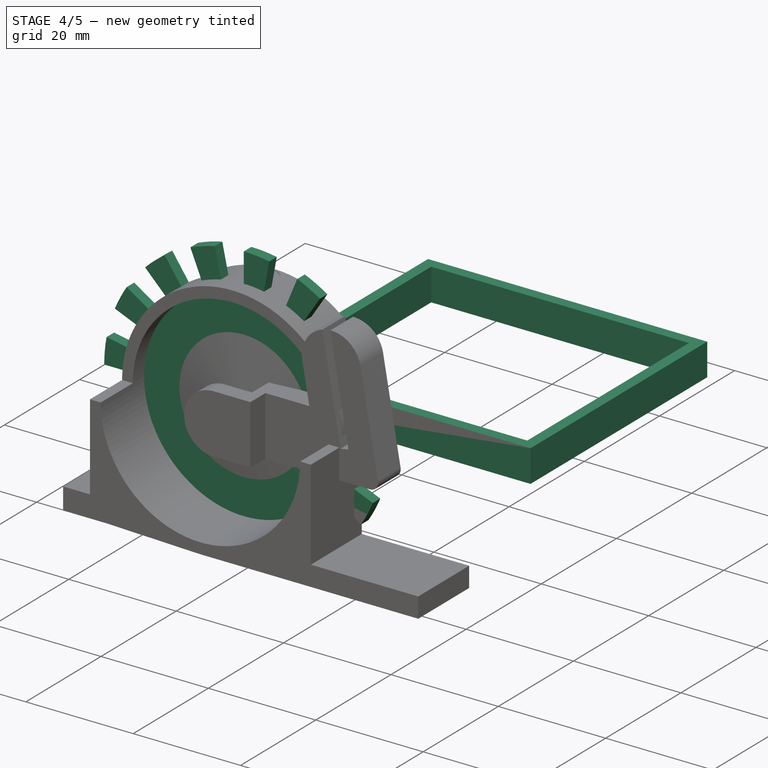
[diagram: stage 4 of 5 — iso view after this stage's code; geometry added in this stage tinted green]
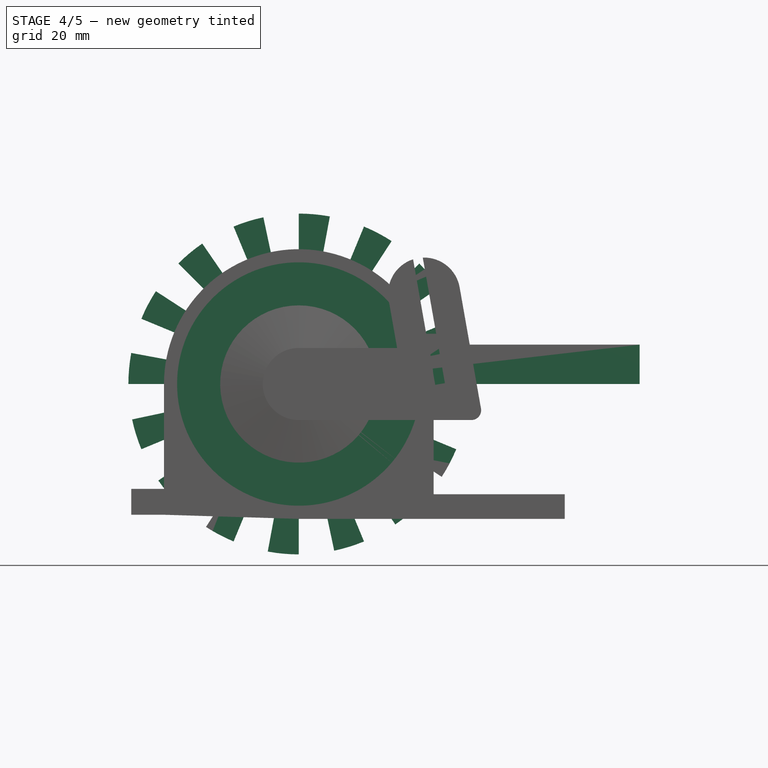
[diagram: stage 4 of 5 — front view after this stage's code; geometry added in this stage tinted green]
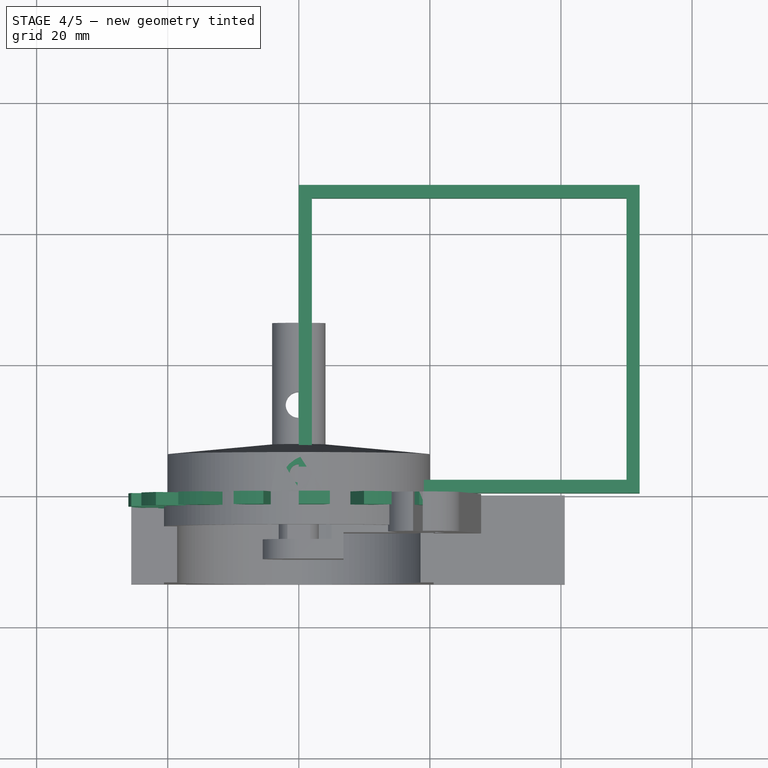
[diagram: stage 4 of 5 — top view after this stage's code; geometry added in this stage tinted green]
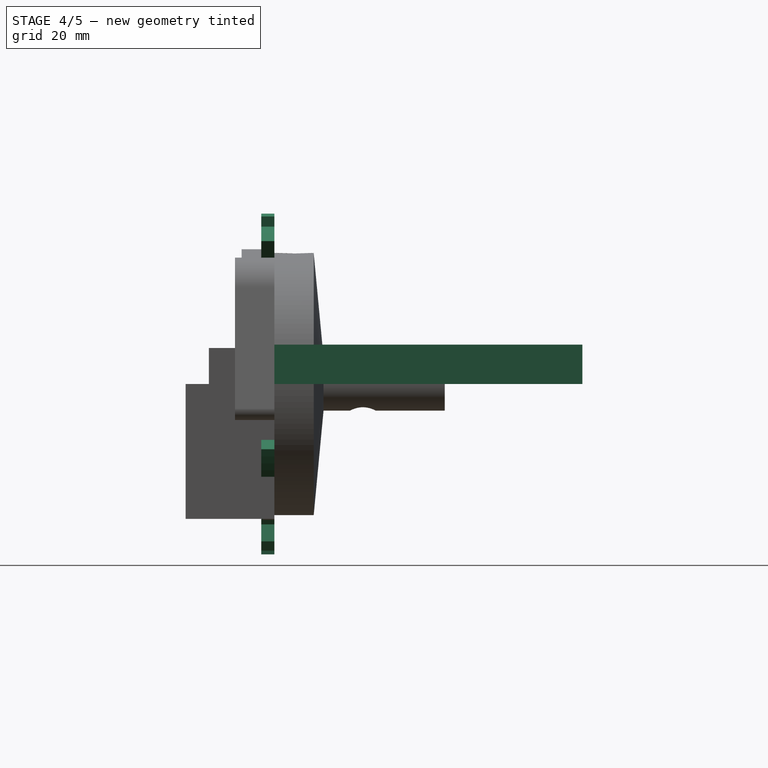
[diagram: stage 4 of 5 — right view after this stage's code; geometry added in this stage tinted green]
FEATURE [Sketcher::SketchObject] Sketch007
  ArcFitTolerance = 1e-06
  AttachmentOffset = pos=(0,0,20) rot=(0,0,1;0rad)
  AttachmentSupport = -> [XY_Plane001]
  FullyConstrained = true
  MakeInternals = false
  MapMode = 5
  Placement = pos=(0,0,20) rot=(0,0,1;0rad)
  expr: .AttachmentOffset.Base.z = VarSet.shaftHolderR
  expr: Constraints[1] = 2.7
  expr: Constraints[2] = VarSet.motorConnBaseHight / 2
  sketch-geometry (1):
    g0: Circle CenterX=0 CenterY=3 CenterZ=0 NormalX=0 NormalY=0 NormalZ=1 AngleXU=0 Radius=2.7
  constraints (3):
    c: PointOnObject(g0,g-2)
    c: Radius(g0) = 2.7
    c: DistanceY(g-1,g0) = 3
FEATURE [PartDesign::Pocket] Pocket002
  BaseFeature = -> Pocket001
  Direction = (0,0,-1)
  Length = 15
  Length2 = 5
  Placement = pos=(0,0,0) rot=(1,0,0;1.5708rad)
  Profile = -> Sketch007
  ReferenceAxis = -> Sketch007 [N_Axis]
  Refine = true
  Suppressed = false
  Type = 0
FEATURE [PartDesign::Body] Body002  label="topPartInsertNoLongerIsed"
  AllowCompound = false
  Group = -> [Sketch005,Pad003,Sketch008,Pocket003,Sketch010,Pocket004]
  Origin = -> Origin002
  Placement = pos=(0,-1.059e-13,-29) rot=(0,-0.707107,-0.707107;3.14159rad)
  Tip = -> Pocket004
FEATURE [Sketcher::SketchObject] Sketch011  label="sides001"
  ArcFitTolerance = 1e-06
  AttachmentSupport = -> [XY_Plane003]
  FullyConstrained = true
  MakeInternals = false
  MapMode = 5
  expr: Constraints[17] = VarSet.motorControllerWidth
  expr: Constraints[18] = VarSet.motorControllerHeight
  expr: Constraints[19] = VarSet.motorControllerSide
  expr: Constraints[20] = VarSet.motorControllerSide
  expr: Constraints[21] = VarSet.motorControllerSide
  expr: Constraints[22] = VarSet.motorControllerSide
  sketch-geometry (8):
    g0: LineSegment StartX=0 StartY=0 StartZ=0 EndX=52 EndY=0 EndZ=0
    g1: LineSegment StartX=52 StartY=0 StartZ=0 EndX=52 EndY=47 EndZ=0
    g2: LineSegment StartX=52 StartY=47 StartZ=0 EndX=0 EndY=47 EndZ=0
    g3: LineSegment StartX=0 StartY=47 StartZ=0 EndX=0 EndY=0 EndZ=0
    g4: LineSegment StartX=2 StartY=45 StartZ=0 EndX=2 EndY=2 EndZ=0
    g5: LineSegment StartX=2 StartY=2 StartZ=0 EndX=50 EndY=2 EndZ=0
    g6: LineSegment StartX=50 StartY=2 StartZ=0 EndX=50 EndY=45 EndZ=0
    g7: LineSegment StartX=50 StartY=45 StartZ=0 EndX=2 EndY=45 EndZ=0
  constraints (23):
    c: Coincident(g0,g1)
    c: Coincident(g1,g2)
    c: Coincident(g2,g3)
    c: Coincident(g3,g0)
    c: Horizontal(g0)
    c: Horizontal(g2)
    c: Vertical(g1)
    c: Vertical(g3)
    c: Coincident(g0,g-1)
    c: Coincident(g4,g5)
    c: Coincident(g5,g6)
    c: Coincident(g6,g7)
    c: Coincident(g7,g4)
    c: Vertical(g4)
    c: Vertical(g6)
    c: Horizontal(g5)
    c: Horizontal(g7)
    c: DistanceY(g4,g4) = 43
    c: DistanceX(g7,g7) = 48
    c: DistanceY(g4,g2) = 2
    c: DistanceY(g0,g4) = 2
    c: DistanceX(g2,g4) = 2
    c: DistanceX(g5,g0) = 2
FEATURE [PartDesign::Pad] Pad005  label="sides"
  Direction = (0,0,1)
  Length = 6
  Length2 = 10
  Profile = -> Sketch011
  ReferenceAxis = -> Sketch011 [N_Axis]
  Refine = true
  Suppressed = false
  Type = 0
FEATURE [PartDesign::Body] Body003  label="motorControllerHolder"
  AllowCompound = false
  Group = -> [Sketch011,Pad005,Sketch012,Pad006,Sketch013,Pad007,Sketch014,Pocket005]
  Origin = -> Origin003
  Tip = -> Pocket005
FEATURE [Sketcher::SketchObject] Sketch015  label="EncoderBase"
  ArcFitTolerance = 1e-06
  AttachmentSupport = -> [XZ_Plane001]
  FullyConstrained = false
  MakeInternals = false
  MapMode = 5
  Placement = pos=(0,0,0) rot=(1,0,0;1.5708rad)
  expr: Constraints[0] = VarSet.shaftHolderR + VarSet.encoderLen
  sketch-geometry (1):
    g0: Circle CenterX=0 CenterY=0 CenterZ=0 NormalX=0 NormalY=0 NormalZ=1 AngleXU=0 Radius=26
  constraints (1):
    c: Radius(g0) = 26
FEATURE [PartDesign::Pad] Pad008
  BaseFeature = -> Pocket002
  Direction = (0,-1,2e-16)
  Length = 2
  Length2 = 10
  Placement = pos=(0,0,0) rot=(1,0,0;1.5708rad)
  Profile = -> Sketch015
  ReferenceAxis = -> Sketch015 [N_Axis]
  Refine = true
  Suppressed = false
  Type = 0
FEATURE [Sketcher::SketchObject] Sketch016  label="CenterPocket"
  ArcFitTolerance = 1e-06
  AttachmentSupport = -> [XZ_Plane001]
  FullyConstrained = true
  MakeInternals = false
  MapMode = 5
  Placement = pos=(0,0,0) rot=(1,0,0;1.5708rad)
  expr: Constraints[1] = VarSet.motorShaftR + VarSet.adj
  expr: Constraints[3] = VarSet.motorShaftLimitHight
  sketch-geometry (2):
    g0: ArcOfCircle CenterX=0 CenterY=0 CenterZ=0 NormalX=0 NormalY=0 NormalZ=1 AngleXU=0 Radius=3.07 StartAngle=2.19001 EndAngle=7.23476
    g1: LineSegment StartX=-1.78182 StartY=2.5 StartZ=0 EndX=1.78182 EndY=2.5 EndZ=0
  constraints (6):
    c: Coincident(g0,g-1)
    c: Radius(g0) = 3.07
    c: Horizontal(g1)
    c: DistanceY(g0,g1) = 2.5
    c: Coincident(g0,g1)
    c: Coincident(g0,g1)
FEATURE [PartDesign::Pocket] Pocket006
  BaseFeature = -> Pad008
  Direction = (0,1,-2e-16)
  Length = 5
  Length2 = 5
  Midplane = true
  Placement = pos=(0,0,0) rot=(1,0,0;1.5708rad)
  Profile = -> Sketch016
  ReferenceAxis = -> Sketch016 [N_Axis]
  Refine = true
  Suppressed = false
  Type = 1
FEATURE [Sketcher::SketchObject] Sketch017
  ArcFitTolerance = 1e-06
  AttachmentSupport = -> [XZ_Plane001]
  FullyConstrained = true
  MakeInternals = false
  MapMode = 5
  Placement = pos=(0,0,0) rot=(1,0,0;1.5708rad)
  expr: Constraints[8] = VarSet.shaftHolderR
  expr: Constraints[9] = VarSet.shaftHolderR + VarSet.encoderLen
  sketch-geometry (6):
    g0: LineSegment [constr] StartX=19.563 StartY=4.15823 StartZ=0 EndX=25.4318 EndY=5.4057 EndZ=0
    g1: LineSegment StartX=20 StartY=0 StartZ=0 EndX=26 EndY=0 EndZ=0
    g2: ArcOfCircle CenterX=0 CenterY=0 CenterZ=0 NormalX=0 NormalY=0 NormalZ=1 AngleXU=0 Radius=26 StartAngle=0 EndAngle=0.20944
    g3: ArcOfCircle CenterX=0 CenterY=0 CenterZ=0 NormalX=0 NormalY=0 NormalZ=1 AngleXU=0 Radius=20 StartAngle=0 EndAngle=0.20944
    g4: LineSegment [constr] StartX=25.4318 StartY=5.4057 StartZ=0 EndX=0 EndY=0 EndZ=0
    g5: LineSegment StartX=19.563 StartY=4.15823 StartZ=0 EndX=25.4318 EndY=5.4057 EndZ=0
  constraints (16):
    c: PointOnObject(g1,g-1)
    c: Coincident(g2,g-1)
    c: Coincident(g2,g1)
    c: Coincident(g2,g0)
    c: Angle(g1,g0) = 0.20944
    c: Coincident(g3,g-1)
    c: Coincident(g0,g3)
    c: Coincident(g1,g3)
    c: Radius(g3) = 20
    c: Radius(g2) = 26
    c: Coincident(g4,g0)
    c: Coincident(g4,g2)
    c: PointOnObject(g1,g-1)
    c: PointOnObject(g0,g4)
    c: Coincident(g5,g0)
    c: Coincident(g5,g0)
FEATURE [PartDesign::Pocket] Pocket007
  BaseFeature = -> Pocket006
  Direction = (0,1,-2e-16)
  Length = 5
  Length2 = 5
  Midplane = true
  Placement = pos=(0,0,0) rot=(1,0,0;1.5708rad)
  Profile = -> Sketch017
  ReferenceAxis = -> Sketch017 [N_Axis]
  Refine = true
  Suppressed = false
  Type = 1
FEATURE [PartDesign::PolarPattern] PolarPattern
  Angle = 360
  Axis = -> Sketch017 [N_Axis]
  BaseFeature = -> Pocket007
  Mode = 0
  Occurrences = 16
  Offset = 120
  Originals = -> [Pocket007]
  Placement = pos=(0,0,0) rot=(1,0,0;1.5708rad)
  Refine = true
  Suppressed = false
  TransformMode = 0
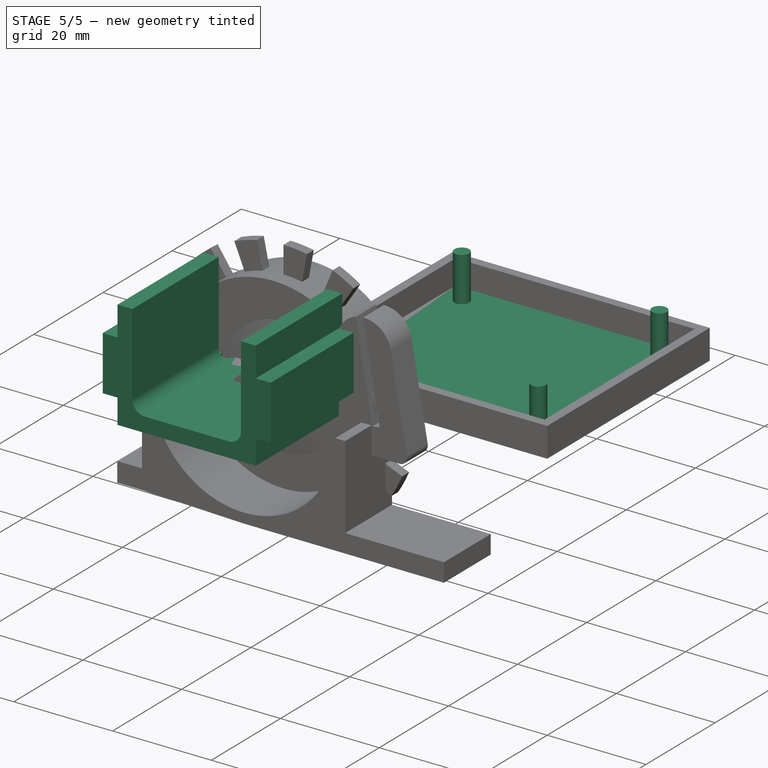
[diagram: stage 5 of 5 — iso view after this stage's code; geometry added in this stage tinted green]
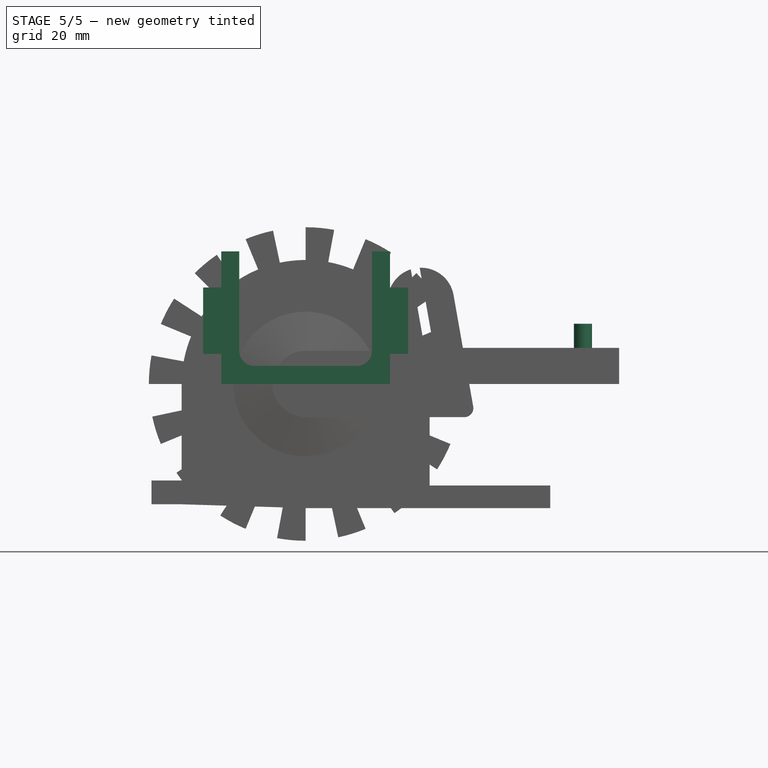
[diagram: stage 5 of 5 — front view after this stage's code; geometry added in this stage tinted green]
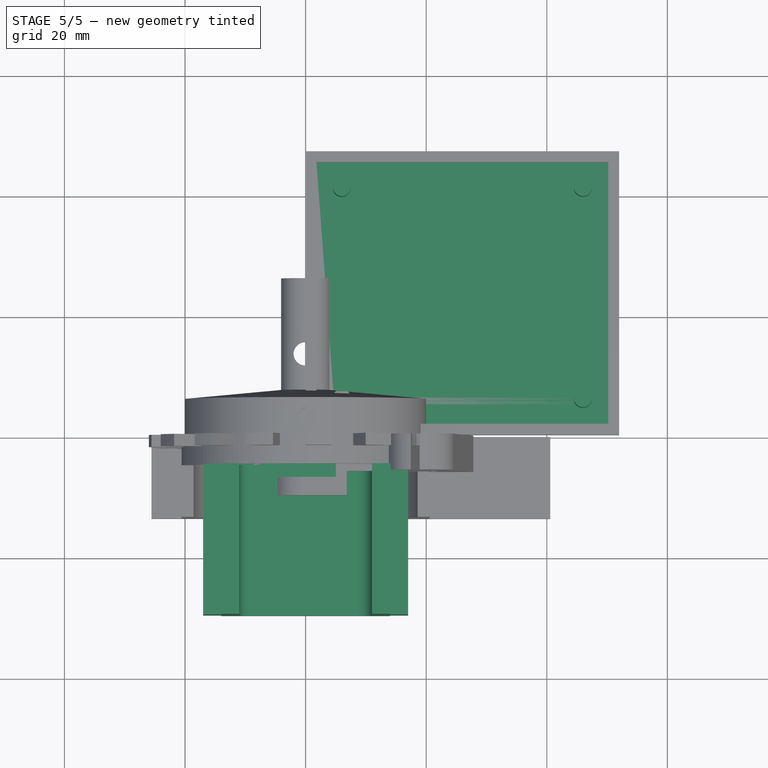
[diagram: stage 5 of 5 — top view after this stage's code; geometry added in this stage tinted green]
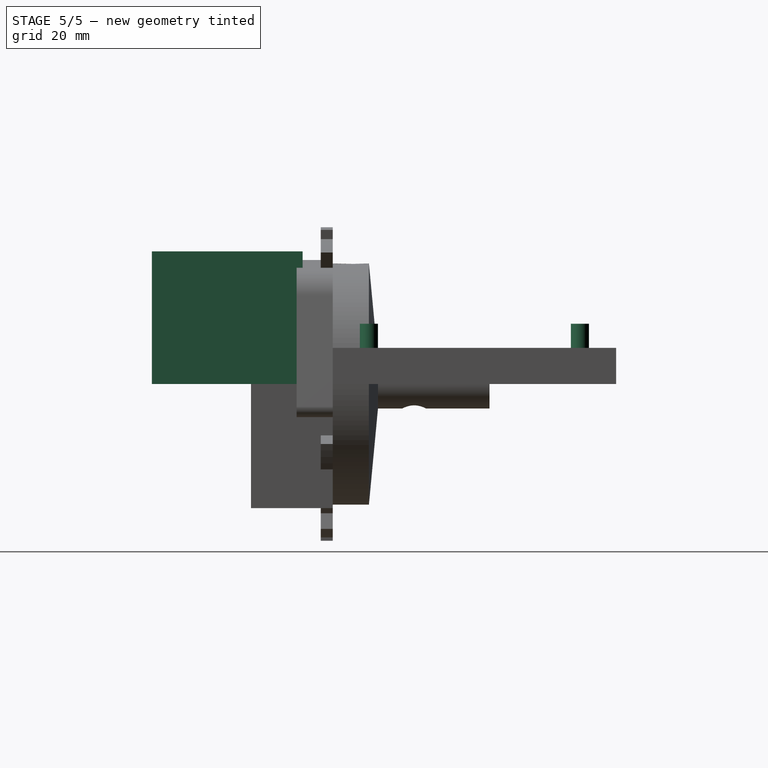
[diagram: stage 5 of 5 — right view after this stage's code; geometry added in this stage tinted green]
FEATURE [Sketcher::SketchObject] Sketch005
  ArcFitTolerance = 1e-06
  AttachmentSupport = -> [XZ_Plane002]
  FullyConstrained = true
  MakeInternals = false
  MapMode = 5
  Placement = pos=(0,0,0) rot=(1,0,0;1.5708rad)
  expr: Constraints[31] = VarSet.topInsertBottomWith
  expr: Constraints[32] = VarSet.topInsertMidWidth
  expr: Constraints[33] = VarSet.topInsertTopWidth
  expr: Constraints[34] = VarSet.topInsertThickness
  expr: Constraints[35] = VarSet.topInsertBottomHeight
  expr: Constraints[36] = VarSet.topInsertBottomHeight
  expr: Constraints[37] = VarSet.topInsertMidHeight
  expr: Constraints[38] = VarSet.topInsertTopHeight
  expr: Constraints[46] = VarSet.topInsertThickness
  sketch-geometry (18):
    g0: LineSegment StartX=-14 StartY=0 StartZ=0 EndX=14 EndY=0 EndZ=0
    g1: LineSegment StartX=-14 StartY=0 StartZ=0 EndX=-14 EndY=5 EndZ=0
    g2: LineSegment StartX=14 StartY=0 StartZ=0 EndX=14 EndY=5 EndZ=0
    g3: LineSegment StartX=14 StartY=5 StartZ=0 EndX=17 EndY=5 EndZ=0
    g4: LineSegment StartX=-14 StartY=5 StartZ=0 EndX=-17 EndY=5 EndZ=0
    g5: LineSegment StartX=-17 StartY=5 StartZ=0 EndX=-17 EndY=16 EndZ=0
    g6: LineSegment StartX=-17 StartY=16 StartZ=0 EndX=-14 EndY=16 EndZ=0
    g7: LineSegment StartX=17 StartY=5 StartZ=0 EndX=17 EndY=16 EndZ=0
    g8: LineSegment StartX=17 StartY=16 StartZ=0 EndX=14 EndY=16 EndZ=0
    g9: LineSegment StartX=-14 StartY=16 StartZ=0 EndX=-14 EndY=22 EndZ=0
    g10: LineSegment StartX=-14 StartY=22 StartZ=0 EndX=-11 EndY=22 EndZ=0
    g11: LineSegment StartX=-11 StartY=22 StartZ=0 EndX=-11 EndY=5.5 EndZ=0
    g12: LineSegment StartX=-8.5 StartY=3 StartZ=0 EndX=8.5 EndY=3 EndZ=0
    g13: LineSegment StartX=11 StartY=5.5 StartZ=0 EndX=11 EndY=22 EndZ=0
    g14: LineSegment StartX=11 StartY=22 StartZ=0 EndX=14 EndY=22 EndZ=0
    g15: LineSegment StartX=14 StartY=22 StartZ=0 EndX=14 EndY=16 EndZ=0
    g16: ArcOfCircle CenterX=-8.5 CenterY=5.5 CenterZ=0 NormalX=0 NormalY=0 NormalZ=1 AngleXU=0 Radius=2.5 StartAngle=3.14159 EndAngle=4.71239
    g17: ArcOfCircle CenterX=8.5 CenterY=5.5 CenterZ=0 NormalX=0 NormalY=0 NormalZ=1 AngleXU=0 Radius=2.5 StartAngle=4.71239 EndAngle=6.28319
  constraints (47):
    c: PointOnObject(g0,g-1)
    c: Coincident(g1,g0)
    c: Vertical(g1)
    c: Coincident(g2,g0)
    c: Vertical(g2)
    c: Coincident(g3,g2)
    c: Horizontal(g3)
    c: Coincident(g4,g1)
    c: Horizontal(g4)
    c: Coincident(g5,g4)
    c: Vertical(g5)
    c: Coincident(g6,g5)
    c: Horizontal(g6)
    c: Coincident(g7,g3)
    c: Vertical(g7)
    c: Coincident(g8,g7)
    c: Horizontal(g8)
    c: Coincident(g9,g6)
    c: Vertical(g9)
    c: Coincident(g10,g9)
    c: Horizontal(g10)
    c: Coincident(g11,g10)
    c: Vertical(g11)
    c: Coincident(g14,g13)
    c: Coincident(g15,g14)
    c: Coincident(g15,g8)
    c: Vertical(g15)
    c: Symmetric(g0,g0,g-2)
    c: Symmetric(g10,g13,g-2)
    c: Symmetric(g9,g14,g-2)
    c: Symmetric(g5,g7,g-2)
    c: DistanceX(g0,g0) = 28
    c: DistanceX(g5,g7) = 34
    c: DistanceX(g9,g14) = 28
    c: DistanceX(g10,g10) = 3
    c: DistanceY(g0,g1) = 5
    c: DistanceY(g2,g2) = 5
    c: DistanceY(g5,g5) = 11
    c: DistanceY(g9,g9) = 6
    c: Symmetric(g16,g17,g-2)
    c: Tangent(g12,g16) = -1.5708
    c: Tangent(g11,g16) = -1.5708
    c: Tangent(g12,g17) = -1.5708
    c: Diameter(g16) = 5
    c: Vertical(g13)
    c: Tangent(g17,g13) = -1.5708
    c: DistanceY(g-1,g12) = 3
FEATURE [PartDesign::Pad] Pad003
  Direction = (0,-1,2e-16)
  Length = 30
  Length2 = 10
  Placement = pos=(0,0,0) rot=(1,0,0;1.5708rad)
  Profile = -> Sketch005
  ReferenceAxis = -> Sketch005 [N_Axis]
  Refine = true
  Suppressed = false
  Type = 0
FEATURE [Sketcher::SketchObject] Sketch008
  ArcFitTolerance = 1e-06
  AttachmentSupport = -> [XZ_Plane002]
  FullyConstrained = true
  MakeInternals = false
  MapMode = 5
  Placement = pos=(0,0,0) rot=(1,0,0;1.5708rad)
  expr: Constraints[10] = VarSet.topInsertBottomHeight + VarSet.topInsertMidHeight + VarSet.topInsertTopHeight
  expr: Constraints[8] = VarSet.topInsertMidWidth
  expr: Constraints[9] = VarSet.topInsertThickness
  sketch-geometry (4):
    g0: LineSegment StartX=-17 StartY=22 StartZ=0 EndX=-17 EndY=3 EndZ=0
    g1: LineSegment StartX=-17 StartY=3 StartZ=0 EndX=17 EndY=3 EndZ=0
    g2: LineSegment StartX=17 StartY=3 StartZ=0 EndX=17 EndY=22 EndZ=0
    g3: LineSegment StartX=17 StartY=22 StartZ=0 EndX=-17 EndY=22 EndZ=0
  constraints (11):
    c: Coincident(g0,g1)
    c: Coincident(g1,g2)
    c: Coincident(g2,g3)
    c: Coincident(g3,g0)
    c: Vertical(g0)
    c: Vertical(g2)
    c: Horizontal(g1)
    c: Symmetric(g0,g2,g-2)
    c: DistanceX(g1,g1) = 34
    c: DistanceY(g-1,g1) = 3
    c: DistanceY(g-1,g0) = 22
FEATURE [PartDesign::Pocket] Pocket003
  BaseFeature = -> Pad003
  Direction = (0,1,-2e-16)
  Length = 5
  Length2 = 5
  Placement = pos=(0,0,0) rot=(1,0,0;1.5708rad)
  Profile = -> Sketch008
  ReferenceAxis = -> Sketch008 [N_Axis]
  Refine = true
  Reversed = true
  Suppressed = false
  Type = 0
FEATURE [Sketcher::SketchObject] Sketch010
  ArcFitTolerance = 1e-06
  AttachmentSupport = -> [XY_Plane002]
  FullyConstrained = true
  MakeInternals = false
  MapMode = 5
  expr: Constraints[5] = VarSet.m3ScrewTight
  expr: Constraints[6] = VarSet.topInsertBottomWith / 2 - 3 mm
  sketch-geometry (3):
    g0: LineSegment [constr] StartX=-11 StartY=-2 StartZ=0 EndX=11 EndY=-2 EndZ=0
    g1: Circle CenterX=-11 CenterY=-2 CenterZ=0 NormalX=0 NormalY=0 NormalZ=1 AngleXU=0 Radius=1.4
    g2: Circle CenterX=11 CenterY=-2 CenterZ=0 NormalX=0 NormalY=0 NormalZ=1 AngleXU=0 Radius=1.4
  constraints (7):
    c: DistanceY(g0,g-1) = 2
    c: Coincident(g1,g0)
    c: Coincident(g2,g0)
    c: Symmetric(g0,g0,g-2)
    c: Equal(g1,g2)
    c: Radius(g1) = 1.4
    c: DistanceX(g0,g-1) = 11
FEATURE [PartDesign::Pocket] Pocket004
  BaseFeature = -> Pocket003
  Direction = (0,0,-1)
  Length = 5
  Length2 = 5
  Placement = pos=(0,0,0) rot=(1,0,0;1.5708rad)
  Profile = -> Sketch010
  ReferenceAxis = -> Sketch010 [N_Axis]
  Refine = true
  Reversed = true
  Suppressed = false
  Type = 1
FEATURE [Sketcher::SketchObject] Sketch012  label="middle"
  ArcFitTolerance = 1e-06
  AttachmentSupport = -> [XY_Plane003]
  FullyConstrained = true
  MakeInternals = false
  MapMode = 5
  expr: Constraints[10] = VarSet.motorControllerSide
  expr: Constraints[11] = VarSet.motorControllerSide
  expr: Constraints[15] = VarSet.motorControllerHoleR - 1 mm
  expr: Constraints[28] = VarSet.motorControllerHoleToSide
  expr: Constraints[29] = VarSet.motorControllerHoleToSide
  expr: Constraints[30] = VarSet.motorControllerHoleToSide
  expr: Constraints[31] = VarSet.motorControllerHoleToSide
  expr: Constraints[8] = VarSet.motorControllerWidth
  expr: Constraints[9] = VarSet.motorControllerHeight
  sketch-geometry (12):
    g0: LineSegment StartX=2 StartY=45 StartZ=0 EndX=2 EndY=2 EndZ=0
    g1: LineSegment StartX=2 StartY=2 StartZ=0 EndX=50 EndY=2 EndZ=0
    g2: LineSegment StartX=50 StartY=2 StartZ=0 EndX=50 EndY=45 EndZ=0
    g3: LineSegment StartX=50 StartY=45 StartZ=0 EndX=2 EndY=45 EndZ=0
    g4: Circle CenterX=6 CenterY=41 CenterZ=0 NormalX=0 NormalY=0 NormalZ=1 AngleXU=0 Radius=0.5
    g5: Circle CenterX=6 CenterY=6 CenterZ=0 NormalX=0 NormalY=0 NormalZ=1 AngleXU=0 Radius=0.5
    g6: Circle CenterX=46 CenterY=6 CenterZ=0 NormalX=0 NormalY=0 NormalZ=1 AngleXU=0 Radius=0.5
    g7: Circle CenterX=46 CenterY=41 CenterZ=0 NormalX=0 NormalY=0 NormalZ=1 AngleXU=0 Radius=0.5
    g8: LineSegment [constr] StartX=6 StartY=41 StartZ=0 EndX=46 EndY=41 EndZ=0
    g9: LineSegment [constr] StartX=46 StartY=41 StartZ=0 EndX=46 EndY=6 EndZ=0
    g10: LineSegment [constr] StartX=46 StartY=6 StartZ=0 EndX=6 EndY=6 EndZ=0
    g11: LineSegment [constr] StartX=6 StartY=6 StartZ=0 EndX=6 EndY=41 EndZ=0
  constraints (32):
    c: Coincident(g0,g1)
    c: Coincident(g1,g2)
    c: Coincident(g2,g3)
    c: Coincident(g3,g0)
    c: Vertical(g0)
    c: Vertical(g2)
    c: Horizontal(g1)
    c: Horizontal(g3)
    c: DistanceY(g0,g0) = 43
    c: DistanceX(g3,g3) = 48
    c: DistanceY(g-1,g0) = 2
    c: DistanceX(g-1,g0) = 2
    c: Equal(g4,g7)
    c: Equal(g7,g6)
    c: Equal(g6,g5)
    c: Radius(g5) = 0.5
    c: Coincident(g8,g4)
    c: Coincident(g8,g7)
    c: Horizontal(g8)
    c: Coincident(g9,g7)
    c: Coincident(g9,g6)
    c: Vertical(g9)
    c: Coincident(g10,g6)
    c: Coincident(g10,g5)
    c: Horizontal(g10)
    c: Coincident(g11,g5)
    c: Coincident(g11,g4)
    c: Vertical(g11)
    c: DistanceX(g0,g4) = 4
    c: DistanceX(g7,g2) = 4
    c: DistanceY(g4,g0) = 4
    c: DistanceY(g0,g5) = 4
FEATURE [PartDesign::Pad] Pad006  label="middle001"
  BaseFeature = -> Pad005
  Direction = (0,0,1)
  Length = 1
  Length2 = 10
  Profile = -> Sketch012
  ReferenceAxis = -> Sketch012 [N_Axis]
  Refine = true
  Suppressed = false
  Type = 0
  expr: Length = VarSet.motorControllerBottomPad
FEATURE [Sketcher::SketchObject] Sketch013  label="rods"
  ArcFitTolerance = 1e-06
  AttachmentSupport = -> [XY_Plane003]
  ExternalGeometry = -> [Pad006]
  FullyConstrained = true
  MakeInternals = false
  MapMode = 5
  expr: Constraints[7] = VarSet.motorControllerHoleR
  sketch-geometry (4):
    g0: Circle CenterX=6 CenterY=41 CenterZ=0 NormalX=0 NormalY=0 NormalZ=1 AngleXU=0 Radius=1.5
    g1: Circle CenterX=6 CenterY=6 CenterZ=0 NormalX=0 NormalY=0 NormalZ=1 AngleXU=0 Radius=1.5
    g2: Circle CenterX=46 CenterY=6 CenterZ=0 NormalX=0 NormalY=0 NormalZ=1 AngleXU=0 Radius=1.5
    g3: Circle CenterX=46 CenterY=41 CenterZ=0 NormalX=0 NormalY=0 NormalZ=1 AngleXU=0 Radius=1.5
  constraints (8):
    c: Coincident(g0,g-6)
    c: Coincident(g1,g-5)
    c: Coincident(g2,g-4)
    c: Coincident(g3,g-3)
    c: Equal(g0,g1)
    c: Equal(g1,g2)
    c: Equal(g2,g3)
    c: Radius(g0) = 1.5
FEATURE [PartDesign::Pad] Pad007  label="rods001"
  BaseFeature = -> Pad006
  Direction = (0,0,1)
  Length = 10
  Length2 = 10
  Profile = -> Sketch013
  ReferenceAxis = -> Sketch013 [N_Axis]
  Refine = true
  Suppressed = false
  Type = 0
FEATURE [Sketcher::SketchObject] Sketch014  label="insideAdj"
  ArcFitTolerance = 1e-06
  AttachmentOffset = pos=(0,0,1) rot=(0,0,1;0rad)
  AttachmentSupport = -> [XY_Plane003]
  ExternalGeometry = -> [Sketch011]
  FullyConstrained = false
  MakeInternals = false
  MapMode = 5
  Placement = pos=(0,0,1) rot=(0,0,1;0rad)
  expr: .AttachmentOffset.Base.z = VarSet.motorControllerBottomPad
  expr: Constraints[10] = VarSet.motorControllerAdj
  expr: Constraints[11] = VarSet.motorControllerAdj
  expr: Constraints[8] = VarSet.motorControllerAdj
  expr: Constraints[9] = VarSet.motorControllerAdj
  sketch-geometry (8):
    g0: LineSegment StartX=1.8 StartY=45.2 StartZ=0 EndX=1.8 EndY=1.8 EndZ=0
    g1: LineSegment StartX=1.8 StartY=1.8 StartZ=0 EndX=50.2 EndY=1.8 EndZ=0
    g2: LineSegment StartX=50.2 StartY=1.8 StartZ=0 EndX=50.2 EndY=45.2 EndZ=0
    g3: LineSegment StartX=50.2 StartY=45.2 StartZ=0 EndX=1.8 EndY=45.2 EndZ=0
    g4: LineSegment StartX=3.29205 StartY=43.5818 StartZ=0 EndX=3.29205 EndY=3.53266 EndZ=0
    g5: LineSegment StartX=3.29205 StartY=3.53266 StartZ=0 EndX=48.7312 EndY=3.53266 EndZ=0
    g6: LineSegment StartX=48.7312 StartY=3.53266 StartZ=0 EndX=48.7312 EndY=43.5818 EndZ=0
    g7: LineSegment StartX=48.7312 StartY=43.5818 StartZ=0 EndX=3.29205 EndY=43.5818 EndZ=0
  constraints (20):
    c: Coincident(g0,g1)
    c: Coincident(g1,g2)
    c: Coincident(g2,g3)
    c: Coincident(g3,g0)
    c: Vertical(g0)
    c: Vertical(g2)
    c: Horizontal(g1)
    c: Horizontal(g3)
    c: DistanceX(g0,g-3) = 0.2
    c: DistanceY(g0,g-4) = 0.2
    c: DistanceY(g-3,g0) = 0.2
    c: DistanceX(g-4,g1) = 0.2
    c: Coincident(g4,g5)
    c: Coincident(g5,g6)
    c: Coincident(g6,g7)
    c: Coincident(g7,g4)
    c: Vertical(g4)
    c: Vertical(g6)
    c: Horizontal(g5)
    c: Horizontal(g7)
FEATURE [PartDesign::Pocket] Pocket005
  BaseFeature = -> Pad007
  Direction = (0,0,-1)
  Length = 5
  Length2 = 5
  Profile = -> Sketch014
  ReferenceAxis = -> Sketch014 [N_Axis]
  Refine = true
  Reversed = true
  Suppressed = false
  Type = 1
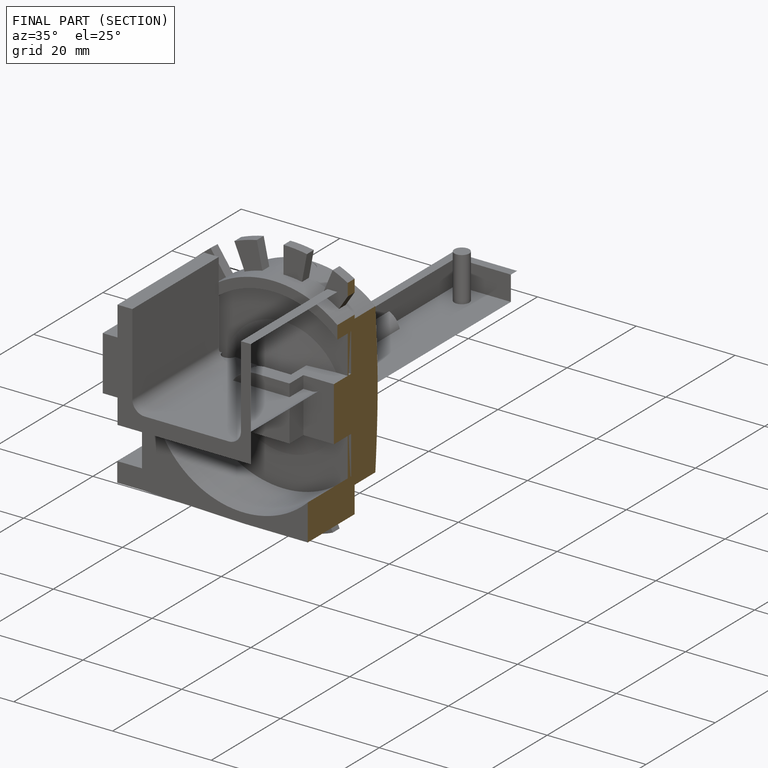
[diagram: finished part — half-section view (interior)]
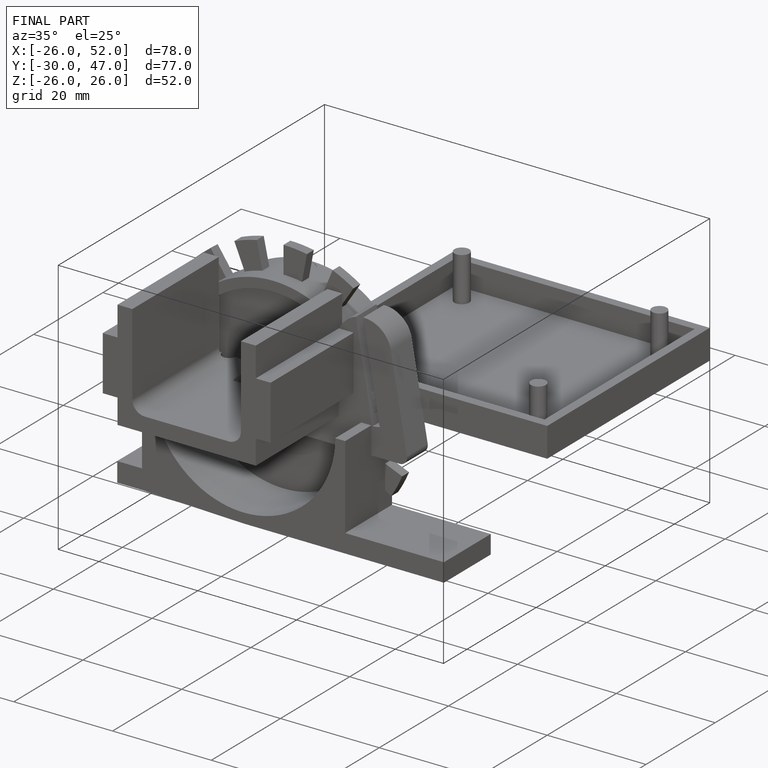
[diagram: finished part — iso view with bounding-box wireframe]
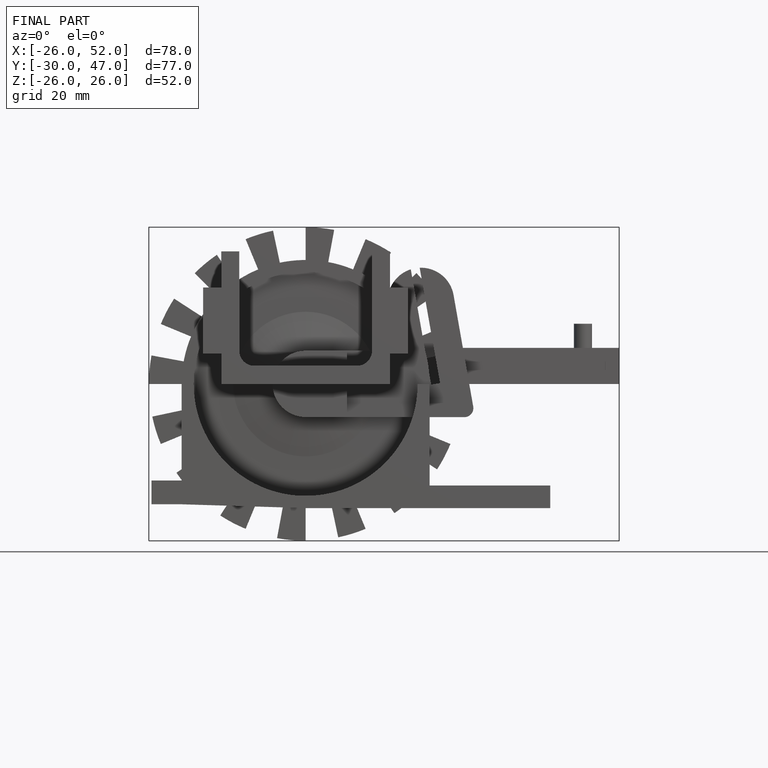
[diagram: finished part — front view with bounding-box wireframe]
